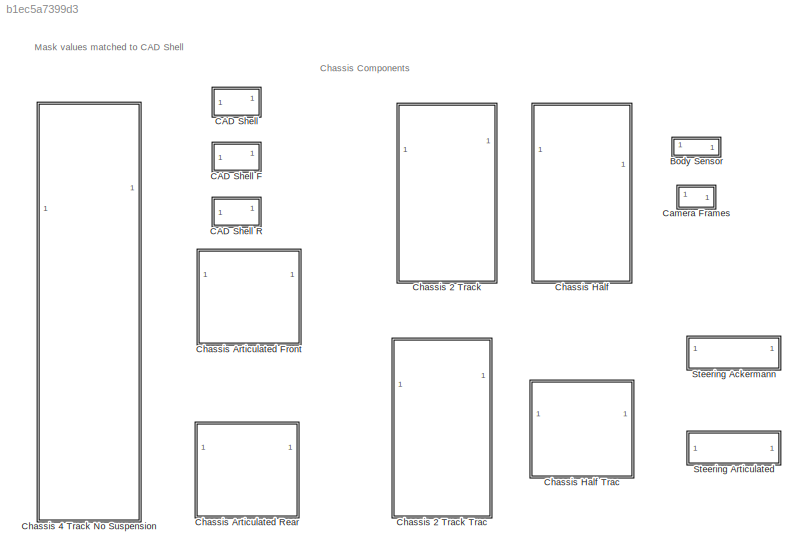
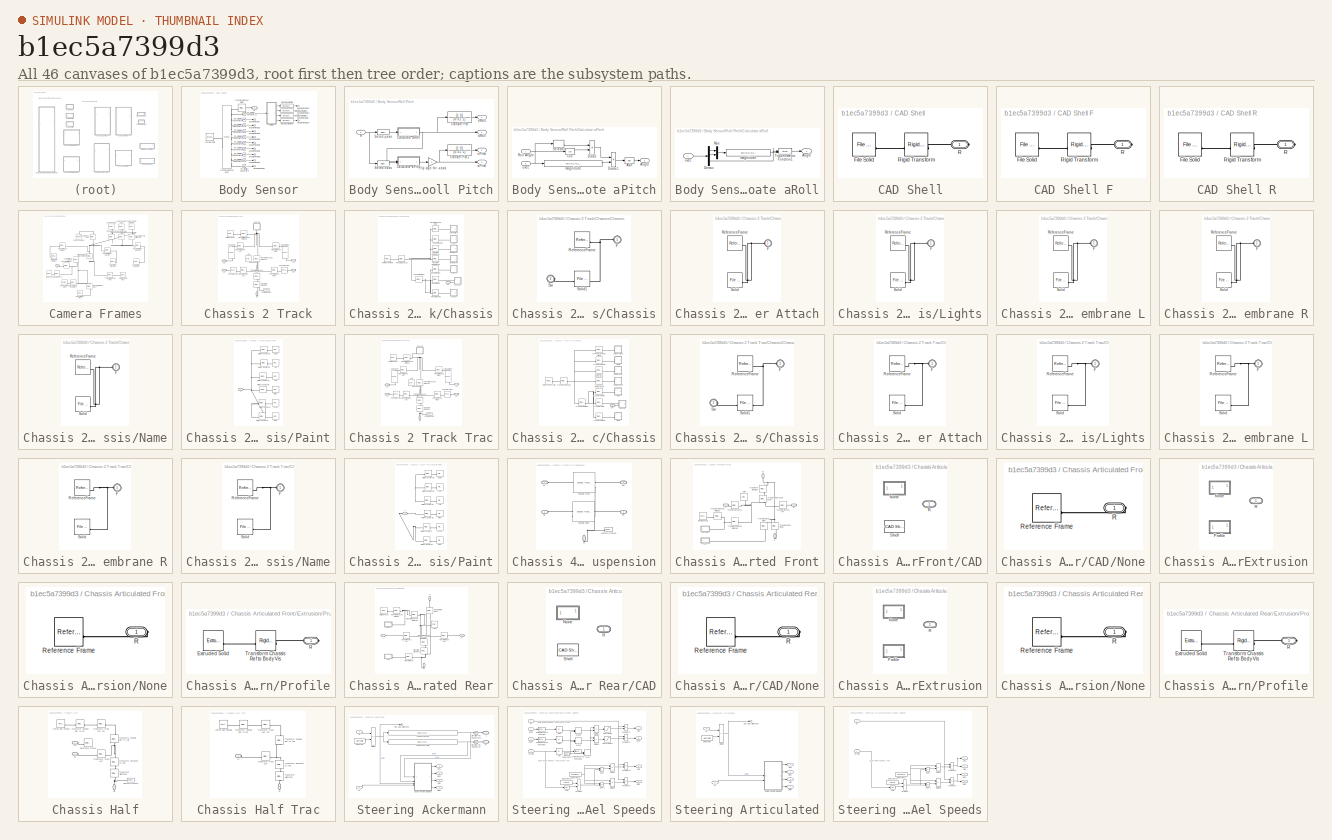
[diagram: thumbnail index - all 46 canvases of the model, root first then tree order]
MODEL slx_b1ec5a7399d3
KIND library
CONFIG SolverName = VariableStepAuto
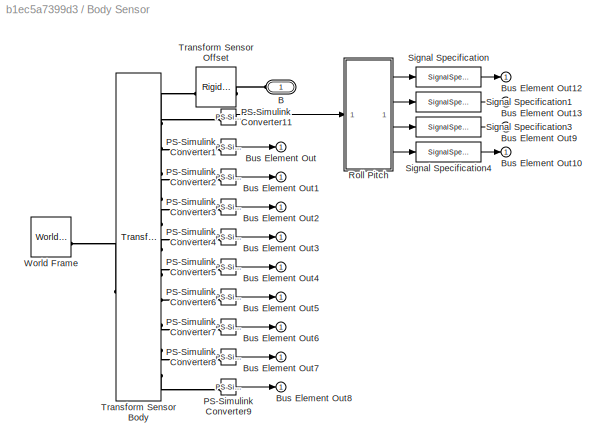
BLOCK [SubSystem] Body Sensor
BLOCK [PMIOPort] Body Sensor/B
  NameLocation = top
  Side = Left
BLOCK [Outport] Body Sensor/Bus Element Out
  VectorParamsAs1DForOutWhenUnconnected = off
BLOCK [Outport] Body Sensor/Bus Element Out1
  VectorParamsAs1DForOutWhenUnconnected = off
BLOCK [Outport] Body Sensor/Bus Element Out10
  VectorParamsAs1DForOutWhenUnconnected = off
BLOCK [Outport] Body Sensor/Bus Element Out12
  VectorParamsAs1DForOutWhenUnconnected = off
BLOCK [Outport] Body Sensor/Bus Element Out13
  VectorParamsAs1DForOutWhenUnconnected = off
BLOCK [Outport] Body Sensor/Bus Element Out2
  VectorParamsAs1DForOutWhenUnconnected = off
BLOCK [Outport] Body Sensor/Bus Element Out3
  VectorParamsAs1DForOutWhenUnconnected = off
BLOCK [Outport] Body Sensor/Bus Element Out4
  VectorParamsAs1DForOutWhenUnconnected = off
BLOCK [Outport] Body Sensor/Bus Element Out5
  VectorParamsAs1DForOutWhenUnconnected = off
BLOCK [Outport] Body Sensor/Bus Element Out6
  VectorParamsAs1DForOutWhenUnconnected = off
BLOCK [Outport] Body Sensor/Bus Element Out7
  VectorParamsAs1DForOutWhenUnconnected = off
BLOCK [Outport] Body Sensor/Bus Element Out8
  VectorParamsAs1DForOutWhenUnconnected = off
BLOCK [Outport] Body Sensor/Bus Element Out9
  VectorParamsAs1DForOutWhenUnconnected = off
BLOCK [Reference] Body Sensor/PS-Simulink Converter1  REF=nesl_utility/PS-Simulink
Converter
  SourceBlock = nesl_utility/PS-Simulink\nConverter
  SourceType = PS-Simulink\nConverter
BLOCK [Reference] Body Sensor/PS-Simulink Converter11  REF=nesl_utility/PS-Simulink
Converter
  SourceBlock = nesl_utility/PS-Simulink\nConverter
  SourceType = PS-Simulink\nConverter
BLOCK [Reference] Body Sensor/PS-Simulink Converter2  REF=nesl_utility/PS-Simulink
Converter
  SourceBlock = nesl_utility/PS-Simulink\nConverter
  SourceType = PS-Simulink\nConverter
BLOCK [Reference] Body Sensor/PS-Simulink Converter3  REF=nesl_utility/PS-Simulink
Converter
  SourceBlock = nesl_utility/PS-Simulink\nConverter
  SourceType = PS-Simulink\nConverter
BLOCK [Reference] Body Sensor/PS-Simulink Converter4  REF=nesl_utility/PS-Simulink
Converter
  SourceBlock = nesl_utility/PS-Simulink\nConverter
  SourceType = PS-Simulink\nConverter
BLOCK [Reference] Body Sensor/PS-Simulink Converter5  REF=nesl_utility/PS-Simulink
Converter
  SourceBlock = nesl_utility/PS-Simulink\nConverter
  SourceType = PS-Simulink\nConverter
BLOCK [Reference] Body Sensor/PS-Simulink Converter6  REF=nesl_utility/PS-Simulink
Converter
  SourceBlock = nesl_utility/PS-Simulink\nConverter
  SourceType = PS-Simulink\nConverter
BLOCK [Reference] Body Sensor/PS-Simulink Converter7  REF=nesl_utility/PS-Simulink
Converter
  SourceBlock = nesl_utility/PS-Simulink\nConverter
  SourceType = PS-Simulink\nConverter
BLOCK [Reference] Body Sensor/PS-Simulink Converter8  REF=nesl_utility/PS-Simulink
Converter
  SourceBlock = nesl_utility/PS-Simulink\nConverter
  SourceType = PS-Simulink\nConverter
BLOCK [Reference] Body Sensor/PS-Simulink Converter9  REF=nesl_utility/PS-Simulink
Converter
  SourceBlock = nesl_utility/PS-Simulink\nConverter
  SourceType = PS-Simulink\nConverter
BLOCK [SubSystem] Body Sensor/Roll Pitch
BLOCK [SubSystem] Body Sensor/Roll Pitch/Calculate aPitch
BLOCK [Outport] Body Sensor/Roll Pitch/Calculate aPitch/Angle
  VectorParamsAs1DForOutWhenUnconnected = off
BLOCK [Trigonometry] Body Sensor/Roll Pitch/Calculate aPitch/Asin
  Operator = asin
BLOCK [Trigonometry] Body Sensor/Roll Pitch/Calculate aPitch/Cos
  Operator = cos
BLOCK [Product] Body Sensor/Roll Pitch/Calculate aPitch/Divide
  Inputs = */
BLOCK [Product] Body Sensor/Roll Pitch/Calculate aPitch/Divide1
  Inputs = */
BLOCK [Inport] Body Sensor/Roll Pitch/Calculate aPitch/Roll Angle
BLOCK [Selector] Body Sensor/Roll Pitch/Calculate aPitch/Selector
  IndexOptions = Index vector (dialog)
  Indices = [3]
  InputPortWidth = 3
  NameLocation = top
  OutputSizes = 1
BLOCK [Fcn] Body Sensor/Roll Pitch/Calculate aPitch/magnitude
  Expr = sqrt(u(1)*u(1)+u(2)*u(2)+u(3)*u(3))
BLOCK [Inport] Body Sensor/Roll Pitch/Calculate aPitch/uvec
  Port = 2
BLOCK [SubSystem] Body Sensor/Roll Pitch/Calculate aRoll
BLOCK [Outport] Body Sensor/Roll Pitch/Calculate aRoll/Angle
  VectorParamsAs1DForOutWhenUnconnected = off
BLOCK [Demux] Body Sensor/Roll Pitch/Calculate aRoll/Demux
  Outputs = 3
BLOCK [Mux] Body Sensor/Roll Pitch/Calculate aRoll/Mux
  DisplayOption = bar
  Inputs = 2
BLOCK [Trigonometry] Body Sensor/Roll Pitch/Calculate aRoll/Trigonometric Function1
  Operator = atan2
BLOCK [Fcn] Body Sensor/Roll Pitch/Calculate aRoll/magnitude
  Expr = sqrt(u(1)*u(1)+u(2)*u(2))
BLOCK [Inport] Body Sensor/Roll Pitch/Calculate aRoll/uvec
BLOCK [Gain] Body Sensor/Roll Pitch/Flip sign for -x axis 
  Gain = -1
BLOCK [Inport] Body Sensor/Roll Pitch/R
BLOCK [Selector] Body Sensor/Roll Pitch/Select x axis
  IndexOptions = Index vector (dialog),Index vector (dialog)
  Indices = [1 2 3],1
  InputPortWidth = 2
  NumberOfDimensions = 2
  OutputSizes = 1,1
BLOCK [Selector] Body Sensor/Roll Pitch/Select y axis
  IndexOptions = Index vector (dialog),Index vector (dialog)
  Indices = [1 2 3],2
  InputPortWidth = 2
  NumberOfDimensions = 2
  OutputSizes = 1,1
BLOCK [TransferFcn] Body Sensor/Roll Pitch/Transfer Fcn
  Denominator = [0.01 1]
  NameLocation = top
  Numerator = [1 0]
BLOCK [TransferFcn] Body Sensor/Roll Pitch/Transfer Fcn1
  Denominator = [0.01 1]
  NameLocation = top
  Numerator = [1 0]
BLOCK [Outport] Body Sensor/Roll Pitch/aPitch
  Port = 2
  VectorParamsAs1DForOutWhenUnconnected = off
BLOCK [Outport] Body Sensor/Roll Pitch/aRoll
  VectorParamsAs1DForOutWhenUnconnected = off
BLOCK [Outport] Body Sensor/Roll Pitch/nPitch
  Port = 4
  VectorParamsAs1DForOutWhenUnconnected = off
BLOCK [Outport] Body Sensor/Roll Pitch/nRoll
  Port = 3
  VectorParamsAs1DForOutWhenUnconnected = off
BLOCK [SignalSpecification] Body Sensor/Signal Specification
  Unit = rad
BLOCK [SignalSpecification] Body Sensor/Signal Specification1
  Unit = rad
BLOCK [SignalSpecification] Body Sensor/Signal Specification3
  Unit = rad/s
BLOCK [SignalSpecification] Body Sensor/Signal Specification4
  Unit = rad/s
BLOCK [Reference] Body Sensor/Transform Sensor Body  REF=sm_lib/Frames and
Transforms/Transform
Sensor
  AttributesFormatString = %<MeasurementFrame>
  SourceBlock = sm_lib/Frames and\nTransforms/Transform\nSensor
  SourceType = Transform\nSensor
BLOCK [Reference] Body Sensor/Transform Sensor Offset  REF=sm_lib/Frames and
Transforms/Rigid
Transform
  NameLocation = top
  SourceBlock = sm_lib/Frames and\nTransforms/Rigid\nTransform
  SourceType = Rigid\nTransform
BLOCK [Reference] Body Sensor/World Frame  REF=sm_lib/Frames and
Transforms/World Frame
  SourceBlock = sm_lib/Frames and\nTransforms/World Frame
  SourceType = World Frame
BLOCK [SubSystem] CAD Shell
BLOCK [SubSystem] CAD Shell F
BLOCK [Reference] CAD Shell F/File Solid  REF=sm_lib/Body Elements/File Solid
  SourceBlock = sm_lib/Body Elements/File Solid
  SourceType = File Solid
BLOCK [PMIOPort] CAD Shell F/R
  Side = Right
BLOCK [Reference] CAD Shell F/Rigid Transform  REF=sm_lib/Frames and
Transforms/Rigid
Transform
  SourceBlock = sm_lib/Frames and\nTransforms/Rigid\nTransform
  SourceType = Rigid\nTransform
BLOCK [SubSystem] CAD Shell R
BLOCK [Reference] CAD Shell R/File Solid  REF=sm_lib/Body Elements/File Solid
  SourceBlock = sm_lib/Body Elements/File Solid
  SourceType = File Solid
BLOCK [PMIOPort] CAD Shell R/R
  Side = Right
BLOCK [Reference] CAD Shell R/Rigid Transform  REF=sm_lib/Frames and
Transforms/Rigid
Transform
  SourceBlock = sm_lib/Frames and\nTransforms/Rigid\nTransform
  SourceType = Rigid\nTransform
BLOCK [Reference] CAD Shell/File Solid  REF=sm_lib/Body Elements/File Solid
  SourceBlock = sm_lib/Body Elements/File Solid
  SourceType = File Solid
BLOCK [PMIOPort] CAD Shell/R
  Side = Right
BLOCK [Reference] CAD Shell/Rigid Transform  REF=sm_lib/Frames and
Transforms/Rigid
Transform
  SourceBlock = sm_lib/Frames and\nTransforms/Rigid\nTransform
  SourceType = Rigid\nTransform
BLOCK [SubSystem] Camera Frames
BLOCK [PMIOPort] Camera Frames/B
  Side = Left
BLOCK [Reference] Camera Frames/CamF CtrRear AimFront  REF=sm_lib/Frames and
Transforms/Reference
Frame
  NameLocation = top
  SourceBlock = sm_lib/Frames and\nTransforms/Reference\nFrame
  SourceType = Reference\nFrame
BLOCK [Reference] Camera Frames/CamF CtrRear AimLF  REF=sm_lib/Frames and
Transforms/Reference
Frame
  NameLocation = left
  SourceBlock = sm_lib/Frames and\nTransforms/Reference\nFrame
  SourceType = Reference\nFrame
BLOCK [Reference] Camera Frames/CamF FR Aim Front  REF=sm_lib/Frames and
Transforms/Reference
Frame
  SourceBlock = sm_lib/Frames and\nTransforms/Reference\nFrame
  SourceType = Reference\nFrame
BLOCK [Reference] Camera Frames/CamF FR AimCtr  REF=sm_lib/Frames and
Transforms/Reference
Frame
  NameLocation = top
  SourceBlock = sm_lib/Frames and\nTransforms/Reference\nFrame
  SourceType = Reference\nFrame
BLOCK [Reference] Camera Frames/CamF FR AimCtr Big  REF=sm_lib/Frames and
Transforms/Reference
Frame
  NameLocation = top
  SourceBlock = sm_lib/Frames and\nTransforms/Reference\nFrame
  SourceType = Reference\nFrame
BLOCK [Reference] Camera Frames/CamF FR AimCtr Big Front  REF=sm_lib/Frames and
Transforms/Reference
Frame
  NameLocation = top
  SourceBlock = sm_lib/Frames and\nTransforms/Reference\nFrame
  SourceType = Reference\nFrame
BLOCK [Reference] Camera Frames/CamF Front AimLR  REF=sm_lib/Frames and
Transforms/Reference
Frame
  NameLocation = left
  SourceBlock = sm_lib/Frames and\nTransforms/Reference\nFrame
  SourceType = Reference\nFrame
BLOCK [Reference] Camera Frames/CamF Left AimRight  REF=sm_lib/Frames and
Transforms/Reference
Frame
  NameLocation = right
  SourceBlock = sm_lib/Frames and\nTransforms/Reference\nFrame
  SourceType = Reference\nFrame
BLOCK [Reference] Camera Frames/CamF Left Rear AimLF  REF=sm_lib/Frames and
Transforms/Reference
Frame
  SourceBlock = sm_lib/Frames and\nTransforms/Reference\nFrame
  SourceType = Reference\nFrame
BLOCK [Reference] Camera Frames/CamF Right AimLeftTL  REF=sm_lib/Frames and
Transforms/Reference
Frame
  NameLocation = left
  SourceBlock = sm_lib/Frames and\nTransforms/Reference\nFrame
  SourceType = Reference\nFrame
BLOCK [Reference] Camera Frames/CamF Right AimLeftTR  REF=sm_lib/Frames and
Transforms/Reference
Frame
  NameLocation = left
  SourceBlock = sm_lib/Frames and\nTransforms/Reference\nFrame
  SourceType = Reference\nFrame
BLOCK [Reference] Camera Frames/CamF Top  REF=sm_lib/Frames and
Transforms/Reference
Frame
  NameLocation = left
  SourceBlock = sm_lib/Frames and\nTransforms/Reference\nFrame
  SourceType = Reference\nFrame
BLOCK [Reference] Camera Frames/Transform Ctr   REF=sm_lib/Frames and
Transforms/Rigid
Transform
  NameLocation = left
  SourceBlock = sm_lib/Frames and\nTransforms/Rigid\nTransform
  SourceType = Rigid\nTransform
BLOCK [Reference] Camera Frames/Transform Ctr Rear  REF=sm_lib/Frames and
Transforms/Rigid
Transform
  SourceBlock = sm_lib/Frames and\nTransforms/Rigid\nTransform
  SourceType = Rigid\nTransform
BLOCK [Reference] Camera Frames/Transform CtrRear AimLF  REF=sm_lib/Frames and
Transforms/Rigid
Transform
  NameLocation = left
  SourceBlock = sm_lib/Frames and\nTransforms/Rigid\nTransform
  SourceType = Rigid\nTransform
BLOCK [Reference] Camera Frames/Transform FR Aim Ctr Big  REF=sm_lib/Frames and
Transforms/Rigid
Transform
  SourceBlock = sm_lib/Frames and\nTransforms/Rigid\nTransform
  SourceType = Rigid\nTransform
BLOCK [Reference] Camera Frames/Transform FR Aim Ctr Big Front  REF=sm_lib/Frames and
Transforms/Rigid
Transform
  SourceBlock = sm_lib/Frames and\nTransforms/Rigid\nTransform
  SourceType = Rigid\nTransform
BLOCK [Reference] Camera Frames/Transform FR Aim Front  REF=sm_lib/Frames and
Transforms/Rigid
Transform
  SourceBlock = sm_lib/Frames and\nTransforms/Rigid\nTransform
  SourceType = Rigid\nTransform
BLOCK [Reference] Camera Frames/Transform Front AimLR  REF=sm_lib/Frames and
Transforms/Rigid
Transform
  NameLocation = right
  SourceBlock = sm_lib/Frames and\nTransforms/Rigid\nTransform
  SourceType = Rigid\nTransform
BLOCK [Reference] Camera Frames/Transform Left AimRight  REF=sm_lib/Frames and
Transforms/Rigid
Transform
  SourceBlock = sm_lib/Frames and\nTransforms/Rigid\nTransform
  SourceType = Rigid\nTransform
BLOCK [Reference] Camera Frames/Transform Left Rear AimLF  REF=sm_lib/Frames and
Transforms/Rigid
Transform
  SourceBlock = sm_lib/Frames and\nTransforms/Rigid\nTransform
  SourceType = Rigid\nTransform
BLOCK [Reference] Camera Frames/Transform RF Aim Ctr  REF=sm_lib/Frames and
Transforms/Rigid
Transform
  SourceBlock = sm_lib/Frames and\nTransforms/Rigid\nTransform
  SourceType = Rigid\nTransform
BLOCK [Reference] Camera Frames/Transform Right Aim LeftTL  REF=sm_lib/Frames and
Transforms/Rigid
Transform
  SourceBlock = sm_lib/Frames and\nTransforms/Rigid\nTransform
  SourceType = Rigid\nTransform
BLOCK [Reference] Camera Frames/Transform Right Aim LeftTR  REF=sm_lib/Frames and
Transforms/Rigid
Transform
  SourceBlock = sm_lib/Frames and\nTransforms/Rigid\nTransform
  SourceType = Rigid\nTransform
BLOCK [Reference] Camera Frames/Transform Top  REF=sm_lib/Frames and
Transforms/Rigid
Transform
  SourceBlock = sm_lib/Frames and\nTransforms/Rigid\nTransform
  SourceType = Rigid\nTransform
BLOCK [SubSystem] Chassis 2 Track
  NameLocation = top
  PortSchema = {"entries":[{"content":{"sides":[{"content":{"connectorIds":["LConn1","LConn2"]},"type":"ConnectorPlacement.EquallySpacedRectSide","uuid":"edd0f9cd-c75d-460e-8747-c453c06c3b51"},{"content":{"connectorIds":["RConn1","RConn2"],"side":"RIGHT"},"type":"ConnectorPlacement.EquallySpacedRectSide","uuid":"aac0b74e-f978-42e3-a6a1-4bc72aaab1ab"},{"content":{"side":"TOP"},"type":"ConnectorPlacement.EquallySp...<+397ch>  <repeated x3 — deduplicated; at blocks: Chassis 2 Track, Chassis 2 Track Trac, Chassis 4 Track No Suspension>
BLOCK [SubSystem] Chassis 2 Track Trac
  NameLocation = top
BLOCK [Reference] Chassis 2 Track Trac/Axle  REF=sm_lib/Body Elements/Cylindrical Solid
  NameLocation = left
  SourceBlock = sm_lib/Body Elements/Cylindrical Solid
  SourceType = Cylindrical Solid
BLOCK [Reference] Chassis 2 Track Trac/Camera Frames  REF=$bdroot/Camera
Frames
  SourceBlock = $bdroot/Camera\nFrames
BLOCK [SubSystem] Chassis 2 Track Trac/Chassis
  NameLocation = left
BLOCK [SubSystem] Chassis 2 Track Trac/Chassis/Chassis
BLOCK [PMIOPort] Chassis 2 Track Trac/Chassis/Chassis/F
  Side = Left
BLOCK [Reference] Chassis 2 Track Trac/Chassis/Chassis/ReferenceFrame  REF=sm_lib/Frames and
Transforms/Reference
Frame
  SourceBlock = sm_lib/Frames and\nTransforms/Reference\nFrame
  SourceType = Reference\nFrame
BLOCK [Reference] Chassis 2 Track Trac/Chassis/Chassis/Solid1  REF=sm_lib/Body Elements/File Solid
  SourceBlock = sm_lib/Body Elements/File Solid
  SourceType = File Solid
BLOCK [PMIOPort] Chassis 2 Track Trac/Chassis/Chassis/Sw
  Port = 2
  Side = Left
BLOCK [SubSystem] Chassis 2 Track Trac/Chassis/Cylinder Attach
BLOCK [PMIOPort] Chassis 2 Track Trac/Chassis/Cylinder Attach/F
  Side = Left
BLOCK [Reference] Chassis 2 Track Trac/Chassis/Cylinder Attach/ReferenceFrame  REF=sm_lib/Frames and
Transforms/Reference
Frame
  SourceBlock = sm_lib/Frames and\nTransforms/Reference\nFrame
  SourceType = Reference\nFrame
BLOCK [Reference] Chassis 2 Track Trac/Chassis/Cylinder Attach/Solid  REF=sm_lib/Body Elements/File Solid
  SourceBlock = sm_lib/Body Elements/File Solid
  SourceType = File Solid
BLOCK [SubSystem] Chassis 2 Track Trac/Chassis/Lights
BLOCK [PMIOPort] Chassis 2 Track Trac/Chassis/Lights/F
  Side = Left
BLOCK [Reference] Chassis 2 Track Trac/Chassis/Lights/ReferenceFrame  REF=sm_lib/Frames and
Transforms/Reference
Frame
  SourceBlock = sm_lib/Frames and\nTransforms/Reference\nFrame
  SourceType = Reference\nFrame
BLOCK [Reference] Chassis 2 Track Trac/Chassis/Lights/Solid  REF=sm_lib/Body Elements/File Solid
  SourceBlock = sm_lib/Body Elements/File Solid
  SourceType = File Solid
BLOCK [SubSystem] Chassis 2 Track Trac/Chassis/Membrane L
BLOCK [PMIOPort] Chassis 2 Track Trac/Chassis/Membrane L/F
  Side = Left
BLOCK [Reference] Chassis 2 Track Trac/Chassis/Membrane L/ReferenceFrame  REF=sm_lib/Frames and
Transforms/Reference
Frame
  SourceBlock = sm_lib/Frames and\nTransforms/Reference\nFrame
  SourceType = Reference\nFrame
BLOCK [Reference] Chassis 2 Track Trac/Chassis/Membrane L/Solid  REF=sm_lib/Body Elements/File Solid
  SourceBlock = sm_lib/Body Elements/File Solid
  SourceType = File Solid
BLOCK [SubSystem] Chassis 2 Track Trac/Chassis/Membrane R
BLOCK [PMIOPort] Chassis 2 Track Trac/Chassis/Membrane R/F
  Side = Left
BLOCK [Reference] Chassis 2 Track Trac/Chassis/Membrane R/ReferenceFrame  REF=sm_lib/Frames and
Transforms/Reference
Frame
  SourceBlock = sm_lib/Frames and\nTransforms/Reference\nFrame
  SourceType = Reference\nFrame
BLOCK [Reference] Chassis 2 Track Trac/Chassis/Membrane R/Solid  REF=sm_lib/Body Elements/File Solid
  SourceBlock = sm_lib/Body Elements/File Solid
  SourceType = File Solid
BLOCK [SubSystem] Chassis 2 Track Trac/Chassis/Name
BLOCK [PMIOPort] Chassis 2 Track Trac/Chassis/Name/F
  Side = Left
BLOCK [Reference] Chassis 2 Track Trac/Chassis/Name/ReferenceFrame  REF=sm_lib/Frames and
Transforms/Reference
Frame
  SourceBlock = sm_lib/Frames and\nTransforms/Reference\nFrame
  SourceType = Reference\nFrame
BLOCK [Reference] Chassis 2 Track Trac/Chassis/Name/Solid  REF=sm_lib/Body Elements/File Solid
  SourceBlock = sm_lib/Body Elements/File Solid
  SourceType = File Solid
BLOCK [SubSystem] Chassis 2 Track Trac/Chassis/Paint
BLOCK [Reference] Chassis 2 Track Trac/Chassis/Paint/Down  REF=sm_lib/Body Elements/File Solid
  NameLocation = top
  SourceBlock = sm_lib/Body Elements/File Solid
  SourceType = File Solid
BLOCK [PMIOPort] Chassis 2 Track Trac/Chassis/Paint/F
  Side = Left
BLOCK [Reference] Chassis 2 Track Trac/Chassis/Paint/Front  REF=sm_lib/Body Elements/File Solid
  NameLocation = top
  SourceBlock = sm_lib/Body Elements/File Solid
  SourceType = File Solid
BLOCK [Reference] Chassis 2 Track Trac/Chassis/Paint/Left  REF=sm_lib/Body Elements/File Solid
  NameLocation = top
  SourceBlock = sm_lib/Body Elements/File Solid
  SourceType = File Solid
BLOCK [Reference] Chassis 2 Track Trac/Chassis/Paint/Rear  REF=sm_lib/Body Elements/File Solid
  NameLocation = top
  SourceBlock = sm_lib/Body Elements/File Solid
  SourceType = File Solid
BLOCK [Reference] Chassis 2 Track Trac/Chassis/Paint/Right  REF=sm_lib/Body Elements/File Solid
  NameLocation = top
  SourceBlock = sm_lib/Body Elements/File Solid
  SourceType = File Solid
BLOCK [Reference] Chassis 2 Track Trac/Chassis/Paint/Rigid Transform  REF=sm_lib/Frames and
Transforms/Rigid
Transform
  SourceBlock = sm_lib/Frames and\nTransforms/Rigid\nTransform
  SourceType = Rigid\nTransform
BLOCK [Reference] Chassis 2 Track Trac/Chassis/Paint/Rigid Transform1  REF=sm_lib/Frames and
Transforms/Rigid
Transform
  SourceBlock = sm_lib/Frames and\nTransforms/Rigid\nTransform
  SourceType = Rigid\nTransform
BLOCK [Reference] Chassis 2 Track Trac/Chassis/Paint/Rigid Transform2  REF=sm_lib/Frames and
Transforms/Rigid
Transform
  SourceBlock = sm_lib/Frames and\nTransforms/Rigid\nTransform
  SourceType = Rigid\nTransform
BLOCK [Reference] Chassis 2 Track Trac/Chassis/Paint/Rigid Transform3  REF=sm_lib/Frames and
Transforms/Rigid
Transform
  SourceBlock = sm_lib/Frames and\nTransforms/Rigid\nTransform
  SourceType = Rigid\nTransform
BLOCK [Reference] Chassis 2 Track Trac/Chassis/Paint/Rigid Transform4  REF=sm_lib/Frames and
Transforms/Rigid
Transform
  SourceBlock = sm_lib/Frames and\nTransforms/Rigid\nTransform
  SourceType = Rigid\nTransform
BLOCK [Reference] Chassis 2 Track Trac/Chassis/Paint/Rigid Transform5  REF=sm_lib/Frames and
Transforms/Rigid
Transform
  SourceBlock = sm_lib/Frames and\nTransforms/Rigid\nTransform
  SourceType = Rigid\nTransform
BLOCK [Reference] Chassis 2 Track Trac/Chassis/Paint/Up  REF=sm_lib/Body Elements/File Solid
  NameLocation = top
  SourceBlock = sm_lib/Body Elements/File Solid
  SourceType = File Solid
BLOCK [Reference] Chassis 2 Track Trac/Chassis/Reference Frame  REF=sm_lib/Frames and
Transforms/Reference
Frame
  SourceBlock = sm_lib/Frames and\nTransforms/Reference\nFrame
  SourceType = Reference\nFrame
BLOCK [PMIOPort] Chassis 2 Track Trac/Chassis/Sw
  Side = Left
BLOCK [Reference] Chassis 2 Track Trac/Chassis/Transform Chassis  REF=sm_lib/Frames and
Transforms/Rigid
Transform
  SourceBlock = sm_lib/Frames and\nTransforms/Rigid\nTransform
  SourceType = Rigid\nTransform
BLOCK [Reference] Chassis 2 Track Trac/Chassis/Transform Cylnder Attach  REF=sm_lib/Frames and
Transforms/Rigid
Transform
  SourceBlock = sm_lib/Frames and\nTransforms/Rigid\nTransform
  SourceType = Rigid\nTransform
BLOCK [Reference] Chassis 2 Track Trac/Chassis/Transform Hull  REF=sm_lib/Frames and
Transforms/Rigid
Transform
  SourceBlock = sm_lib/Frames and\nTransforms/Rigid\nTransform
  SourceType = Rigid\nTransform
BLOCK [Reference] Chassis 2 Track Trac/Chassis/Transform Hull Plus  REF=sm_lib/Frames and
Transforms/Rigid
Transform
  SourceBlock = sm_lib/Frames and\nTransforms/Rigid\nTransform
  SourceType = Rigid\nTransform
BLOCK [Reference] Chassis 2 Track Trac/Chassis/Transform Lights  REF=sm_lib/Frames and
Transforms/Rigid
Transform
  SourceBlock = sm_lib/Frames and\nTransforms/Rigid\nTransform
  SourceType = Rigid\nTransform
BLOCK [Reference] Chassis 2 Track Trac/Chassis/Transform Membrane L  REF=sm_lib/Frames and
Transforms/Rigid
Transform
  SourceBlock = sm_lib/Frames and\nTransforms/Rigid\nTransform
  SourceType = Rigid\nTransform
BLOCK [Reference] Chassis 2 Track Trac/Chassis/Transform Membrane R  REF=sm_lib/Frames and
Transforms/Rigid
Transform
  SourceBlock = sm_lib/Frames and\nTransforms/Rigid\nTransform
  SourceType = Rigid\nTransform
BLOCK [Reference] Chassis 2 Track Trac/Chassis/Transform Name  REF=sm_lib/Frames and
Transforms/Rigid
Transform
  SourceBlock = sm_lib/Frames and\nTransforms/Rigid\nTransform
  SourceType = Rigid\nTransform
BLOCK [Reference] Chassis 2 Track Trac/Chassis/Transform Paint  REF=sm_lib/Frames and
Transforms/Rigid
Transform
  SourceBlock = sm_lib/Frames and\nTransforms/Rigid\nTransform
  SourceType = Rigid\nTransform
BLOCK [Reference] Chassis 2 Track Trac/Cylinder Left  REF=sm_trackV_lib_chain_underc_elem/Suspension
Cylinder
  Commented = on
  NameLocation = left
  SourceBlock = sm_trackV_lib_chain_underc_elem/Suspension\nCylinder
BLOCK [Reference] Chassis 2 Track Trac/Cylinder Right  REF=sm_trackV_lib_chain_underc_elem/Suspension
Cylinder
  Commented = on
  NameLocation = right
  SourceBlock = sm_trackV_lib_chain_underc_elem/Suspension\nCylinder
BLOCK [Reference] Chassis 2 Track Trac/Inertia Chassis  REF=sm_lib/Body Elements/Inertia
  SourceBlock = sm_lib/Body Elements/Inertia
  SourceType = Inertia
BLOCK [Reference] Chassis 2 Track Trac/Revolute Axle L  REF=sm_lib/Joints/Revolute Joint
  Commented = through
  SourceBlock = sm_lib/Joints/Revolute Joint
  SourceType = Revolute Joint
BLOCK [Reference] Chassis 2 Track Trac/Revolute Axle R  REF=sm_lib/Joints/Revolute Joint
  Commented = through
  SourceBlock = sm_lib/Joints/Revolute Joint
  SourceType = Revolute Joint
BLOCK [Reference] Chassis 2 Track Trac/Transform Alignment  REF=sm_lib/Frames and
Transforms/Rigid
Transform
  NameLocation = left
  SourceBlock = sm_lib/Frames and\nTransforms/Rigid\nTransform
  SourceType = Rigid\nTransform
BLOCK [Reference] Chassis 2 Track Trac/Transform Chassis Ref to Axle  REF=sm_lib/Frames and
Transforms/Rigid
Transform
  NameLocation = right
  SourceBlock = sm_lib/Frames and\nTransforms/Rigid\nTransform
  SourceType = Rigid\nTransform
BLOCK [Reference] Chassis 2 Track Trac/Transform Chassis Ref to CG  REF=sm_lib/Frames and
Transforms/Rigid
Transform
  SourceBlock = sm_lib/Frames and\nTransforms/Rigid\nTransform
  SourceType = Rigid\nTransform
BLOCK [Reference] Chassis 2 Track Trac/Transform Sprocket to Axle  REF=sm_lib/Frames and
Transforms/Rigid
Transform
  NameLocation = right
  SourceBlock = sm_lib/Frames and\nTransforms/Rigid\nTransform
  SourceType = Rigid\nTransform
BLOCK [Reference] Chassis 2 Track Trac/Transform Susp Left  REF=sm_lib/Frames and
Transforms/Rigid
Transform
  SourceBlock = sm_lib/Frames and\nTransforms/Rigid\nTransform
  SourceType = Rigid\nTransform
BLOCK [Reference] Chassis 2 Track Trac/Transform Susp Right  REF=sm_lib/Frames and
Transforms/Rigid
Transform
  SourceBlock = sm_lib/Frames and\nTransforms/Rigid\nTransform
  SourceType = Rigid\nTransform
BLOCK [Reference] Chassis 2 Track Trac/Transform Track Left  REF=sm_lib/Frames and
Transforms/Rigid
Transform
  SourceBlock = sm_lib/Frames and\nTransforms/Rigid\nTransform
  SourceType = Rigid\nTransform
BLOCK [Reference] Chassis 2 Track Trac/Transform Track Right  REF=sm_lib/Frames and
Transforms/Rigid
Transform
  SourceBlock = sm_lib/Frames and\nTransforms/Rigid\nTransform
  SourceType = Rigid\nTransform
BLOCK [PMIOPort] Chassis 2 Track Trac/W
  NameLocation = right
  Port = 5
  Side = Right
BLOCK [PMIOPort] Chassis 2 Track Trac/aL
  Port = 2
  Side = Left
BLOCK [PMIOPort] Chassis 2 Track Trac/aR
  Port = 4
  Side = Right
BLOCK [PMIOPort] Chassis 2 Track Trac/sL
  Side = Left
BLOCK [PMIOPort] Chassis 2 Track Trac/sR
  Port = 3
  Side = Right
BLOCK [Reference] Chassis 2 Track/Axle  REF=sm_lib/Body Elements/Cylindrical Solid
  NameLocation = left
  SourceBlock = sm_lib/Body Elements/Cylindrical Solid
  SourceType = Cylindrical Solid
BLOCK [Reference] Chassis 2 Track/Camera Frames  REF=$bdroot/Camera
Frames
  SourceBlock = $bdroot/Camera\nFrames
BLOCK [SubSystem] Chassis 2 Track/Chassis
  NameLocation = left
BLOCK [SubSystem] Chassis 2 Track/Chassis/Chassis
BLOCK [PMIOPort] Chassis 2 Track/Chassis/Chassis/F
  Side = Left
BLOCK [Reference] Chassis 2 Track/Chassis/Chassis/ReferenceFrame  REF=sm_lib/Frames and
Transforms/Reference
Frame
  SourceBlock = sm_lib/Frames and\nTransforms/Reference\nFrame
  SourceType = Reference\nFrame
BLOCK [Reference] Chassis 2 Track/Chassis/Chassis/Solid1  REF=sm_lib/Body Elements/File Solid
  SourceBlock = sm_lib/Body Elements/File Solid
  SourceType = File Solid
BLOCK [PMIOPort] Chassis 2 Track/Chassis/Chassis/Sw
  Port = 2
  Side = Left
BLOCK [SubSystem] Chassis 2 Track/Chassis/Cylinder Attach
BLOCK [PMIOPort] Chassis 2 Track/Chassis/Cylinder Attach/F
  Side = Left
BLOCK [Reference] Chassis 2 Track/Chassis/Cylinder Attach/ReferenceFrame  REF=sm_lib/Frames and
Transforms/Reference
Frame
  SourceBlock = sm_lib/Frames and\nTransforms/Reference\nFrame
  SourceType = Reference\nFrame
BLOCK [Reference] Chassis 2 Track/Chassis/Cylinder Attach/Solid  REF=sm_lib/Body Elements/File Solid
  SourceBlock = sm_lib/Body Elements/File Solid
  SourceType = File Solid
BLOCK [SubSystem] Chassis 2 Track/Chassis/Lights
BLOCK [PMIOPort] Chassis 2 Track/Chassis/Lights/F
  Side = Left
BLOCK [Reference] Chassis 2 Track/Chassis/Lights/ReferenceFrame  REF=sm_lib/Frames and
Transforms/Reference
Frame
  SourceBlock = sm_lib/Frames and\nTransforms/Reference\nFrame
  SourceType = Reference\nFrame
BLOCK [Reference] Chassis 2 Track/Chassis/Lights/Solid  REF=sm_lib/Body Elements/File Solid
  SourceBlock = sm_lib/Body Elements/File Solid
  SourceType = File Solid
BLOCK [SubSystem] Chassis 2 Track/Chassis/Membrane L
BLOCK [PMIOPort] Chassis 2 Track/Chassis/Membrane L/F
  Side = Left
BLOCK [Reference] Chassis 2 Track/Chassis/Membrane L/ReferenceFrame  REF=sm_lib/Frames and
Transforms/Reference
Frame
  SourceBlock = sm_lib/Frames and\nTransforms/Reference\nFrame
  SourceType = Reference\nFrame
BLOCK [Reference] Chassis 2 Track/Chassis/Membrane L/Solid  REF=sm_lib/Body Elements/File Solid
  SourceBlock = sm_lib/Body Elements/File Solid
  SourceType = File Solid
BLOCK [SubSystem] Chassis 2 Track/Chassis/Membrane R
BLOCK [PMIOPort] Chassis 2 Track/Chassis/Membrane R/F
  Side = Left
BLOCK [Reference] Chassis 2 Track/Chassis/Membrane R/ReferenceFrame  REF=sm_lib/Frames and
Transforms/Reference
Frame
  SourceBlock = sm_lib/Frames and\nTransforms/Reference\nFrame
  SourceType = Reference\nFrame
BLOCK [Reference] Chassis 2 Track/Chassis/Membrane R/Solid  REF=sm_lib/Body Elements/File Solid
  SourceBlock = sm_lib/Body Elements/File Solid
  SourceType = File Solid
BLOCK [SubSystem] Chassis 2 Track/Chassis/Name
BLOCK [PMIOPort] Chassis 2 Track/Chassis/Name/F
  Side = Left
BLOCK [Reference] Chassis 2 Track/Chassis/Name/ReferenceFrame  REF=sm_lib/Frames and
Transforms/Reference
Frame
  SourceBlock = sm_lib/Frames and\nTransforms/Reference\nFrame
  SourceType = Reference\nFrame
BLOCK [Reference] Chassis 2 Track/Chassis/Name/Solid  REF=sm_lib/Body Elements/File Solid
  SourceBlock = sm_lib/Body Elements/File Solid
  SourceType = File Solid
BLOCK [SubSystem] Chassis 2 Track/Chassis/Paint
BLOCK [Reference] Chassis 2 Track/Chassis/Paint/Down  REF=sm_lib/Body Elements/File Solid
  NameLocation = top
  SourceBlock = sm_lib/Body Elements/File Solid
  SourceType = File Solid
BLOCK [PMIOPort] Chassis 2 Track/Chassis/Paint/F
  Side = Left
BLOCK [Reference] Chassis 2 Track/Chassis/Paint/Front  REF=sm_lib/Body Elements/File Solid
  NameLocation = top
  SourceBlock = sm_lib/Body Elements/File Solid
  SourceType = File Solid
BLOCK [Reference] Chassis 2 Track/Chassis/Paint/Left  REF=sm_lib/Body Elements/File Solid
  NameLocation = top
  SourceBlock = sm_lib/Body Elements/File Solid
  SourceType = File Solid
BLOCK [Reference] Chassis 2 Track/Chassis/Paint/Rear  REF=sm_lib/Body Elements/File Solid
  NameLocation = top
  SourceBlock = sm_lib/Body Elements/File Solid
  SourceType = File Solid
BLOCK [Reference] Chassis 2 Track/Chassis/Paint/Right  REF=sm_lib/Body Elements/File Solid
  NameLocation = top
  SourceBlock = sm_lib/Body Elements/File Solid
  SourceType = File Solid
BLOCK [Reference] Chassis 2 Track/Chassis/Paint/Rigid Transform  REF=sm_lib/Frames and
Transforms/Rigid
Transform
  SourceBlock = sm_lib/Frames and\nTransforms/Rigid\nTransform
  SourceType = Rigid\nTransform
BLOCK [Reference] Chassis 2 Track/Chassis/Paint/Rigid Transform1  REF=sm_lib/Frames and
Transforms/Rigid
Transform
  SourceBlock = sm_lib/Frames and\nTransforms/Rigid\nTransform
  SourceType = Rigid\nTransform
BLOCK [Reference] Chassis 2 Track/Chassis/Paint/Rigid Transform2  REF=sm_lib/Frames and
Transforms/Rigid
Transform
  SourceBlock = sm_lib/Frames and\nTransforms/Rigid\nTransform
  SourceType = Rigid\nTransform
BLOCK [Reference] Chassis 2 Track/Chassis/Paint/Rigid Transform3  REF=sm_lib/Frames and
Transforms/Rigid
Transform
  SourceBlock = sm_lib/Frames and\nTransforms/Rigid\nTransform
  SourceType = Rigid\nTransform
BLOCK [Reference] Chassis 2 Track/Chassis/Paint/Rigid Transform4  REF=sm_lib/Frames and
Transforms/Rigid
Transform
  SourceBlock = sm_lib/Frames and\nTransforms/Rigid\nTransform
  SourceType = Rigid\nTransform
BLOCK [Reference] Chassis 2 Track/Chassis/Paint/Rigid Transform5  REF=sm_lib/Frames and
Transforms/Rigid
Transform
  SourceBlock = sm_lib/Frames and\nTransforms/Rigid\nTransform
  SourceType = Rigid\nTransform
BLOCK [Reference] Chassis 2 Track/Chassis/Paint/Up  REF=sm_lib/Body Elements/File Solid
  NameLocation = top
  SourceBlock = sm_lib/Body Elements/File Solid
  SourceType = File Solid
BLOCK [Reference] Chassis 2 Track/Chassis/Reference Frame  REF=sm_lib/Frames and
Transforms/Reference
Frame
  SourceBlock = sm_lib/Frames and\nTransforms/Reference\nFrame
  SourceType = Reference\nFrame
BLOCK [PMIOPort] Chassis 2 Track/Chassis/Sw
  Side = Left
BLOCK [Reference] Chassis 2 Track/Chassis/Transform Chassis  REF=sm_lib/Frames and
Transforms/Rigid
Transform
  SourceBlock = sm_lib/Frames and\nTransforms/Rigid\nTransform
  SourceType = Rigid\nTransform
BLOCK [Reference] Chassis 2 Track/Chassis/Transform Cylnder Attach  REF=sm_lib/Frames and
Transforms/Rigid
Transform
  SourceBlock = sm_lib/Frames and\nTransforms/Rigid\nTransform
  SourceType = Rigid\nTransform
BLOCK [Reference] Chassis 2 Track/Chassis/Transform Hull  REF=sm_lib/Frames and
Transforms/Rigid
Transform
  SourceBlock = sm_lib/Frames and\nTransforms/Rigid\nTransform
  SourceType = Rigid\nTransform
BLOCK [Reference] Chassis 2 Track/Chassis/Transform Hull Plus  REF=sm_lib/Frames and
Transforms/Rigid
Transform
  SourceBlock = sm_lib/Frames and\nTransforms/Rigid\nTransform
  SourceType = Rigid\nTransform
BLOCK [Reference] Chassis 2 Track/Chassis/Transform Lights  REF=sm_lib/Frames and
Transforms/Rigid
Transform
  SourceBlock = sm_lib/Frames and\nTransforms/Rigid\nTransform
  SourceType = Rigid\nTransform
BLOCK [Reference] Chassis 2 Track/Chassis/Transform Membrane L  REF=sm_lib/Frames and
Transforms/Rigid
Transform
  SourceBlock = sm_lib/Frames and\nTransforms/Rigid\nTransform
  SourceType = Rigid\nTransform
BLOCK [Reference] Chassis 2 Track/Chassis/Transform Membrane R  REF=sm_lib/Frames and
Transforms/Rigid
Transform
  SourceBlock = sm_lib/Frames and\nTransforms/Rigid\nTransform
  SourceType = Rigid\nTransform
BLOCK [Reference] Chassis 2 Track/Chassis/Transform Name  REF=sm_lib/Frames and
Transforms/Rigid
Transform
  SourceBlock = sm_lib/Frames and\nTransforms/Rigid\nTransform
  SourceType = Rigid\nTransform
BLOCK [Reference] Chassis 2 Track/Chassis/Transform Paint  REF=sm_lib/Frames and
Transforms/Rigid
Transform
  SourceBlock = sm_lib/Frames and\nTransforms/Rigid\nTransform
  SourceType = Rigid\nTransform
BLOCK [Reference] Chassis 2 Track/Cylinder Left  REF=sm_trackV_lib_chain_underc_elem/Suspension
Cylinder
  NameLocation = left
  SourceBlock = sm_trackV_lib_chain_underc_elem/Suspension\nCylinder
BLOCK [Reference] Chassis 2 Track/Cylinder Right  REF=sm_trackV_lib_chain_underc_elem/Suspension
Cylinder
  NameLocation = right
  SourceBlock = sm_trackV_lib_chain_underc_elem/Suspension\nCylinder
BLOCK [Reference] Chassis 2 Track/Inertia Chassis  REF=sm_lib/Body Elements/Inertia
  SourceBlock = sm_lib/Body Elements/Inertia
  SourceType = Inertia
BLOCK [Reference] Chassis 2 Track/Revolute Axle L  REF=sm_lib/Joints/Revolute Joint
  SourceBlock = sm_lib/Joints/Revolute Joint
  SourceType = Revolute Joint
BLOCK [Reference] Chassis 2 Track/Revolute Axle R  REF=sm_lib/Joints/Revolute Joint
  SourceBlock = sm_lib/Joints/Revolute Joint
  SourceType = Revolute Joint
BLOCK [Reference] Chassis 2 Track/Transform Alignment  REF=sm_lib/Frames and
Transforms/Rigid
Transform
  NameLocation = left
  SourceBlock = sm_lib/Frames and\nTransforms/Rigid\nTransform
  SourceType = Rigid\nTransform
BLOCK [Reference] Chassis 2 Track/Transform Chassis Ref to Axle  REF=sm_lib/Frames and
Transforms/Rigid
Transform
  NameLocation = right
  SourceBlock = sm_lib/Frames and\nTransforms/Rigid\nTransform
  SourceType = Rigid\nTransform
BLOCK [Reference] Chassis 2 Track/Transform Chassis Ref to CG  REF=sm_lib/Frames and
Transforms/Rigid
Transform
  SourceBlock = sm_lib/Frames and\nTransforms/Rigid\nTransform
  SourceType = Rigid\nTransform
BLOCK [Reference] Chassis 2 Track/Transform Sprocket to Axle  REF=sm_lib/Frames and
Transforms/Rigid
Transform
  NameLocation = right
  SourceBlock = sm_lib/Frames and\nTransforms/Rigid\nTransform
  SourceType = Rigid\nTransform
BLOCK [Reference] Chassis 2 Track/Transform Susp Left  REF=sm_lib/Frames and
Transforms/Rigid
Transform
  SourceBlock = sm_lib/Frames and\nTransforms/Rigid\nTransform
  SourceType = Rigid\nTransform
BLOCK [Reference] Chassis 2 Track/Transform Susp Right  REF=sm_lib/Frames and
Transforms/Rigid
Transform
  SourceBlock = sm_lib/Frames and\nTransforms/Rigid\nTransform
  SourceType = Rigid\nTransform
BLOCK [Reference] Chassis 2 Track/Transform Track Left  REF=sm_lib/Frames and
Transforms/Rigid
Transform
  SourceBlock = sm_lib/Frames and\nTransforms/Rigid\nTransform
  SourceType = Rigid\nTransform
BLOCK [Reference] Chassis 2 Track/Transform Track Right  REF=sm_lib/Frames and
Transforms/Rigid
Transform
  SourceBlock = sm_lib/Frames and\nTransforms/Rigid\nTransform
  SourceType = Rigid\nTransform
BLOCK [PMIOPort] Chassis 2 Track/W
  NameLocation = right
  Port = 5
  Side = Right
BLOCK [PMIOPort] Chassis 2 Track/aL
  Port = 2
  Side = Left
BLOCK [PMIOPort] Chassis 2 Track/aR
  Port = 4
  Side = Right
BLOCK [PMIOPort] Chassis 2 Track/sL
  Side = Left
BLOCK [PMIOPort] Chassis 2 Track/sR
  Port = 3
  Side = Right
BLOCK [SubSystem] Chassis 4 Track No Suspension
  NameLocation = top
BLOCK [Reference] Chassis 4 Track No Suspension/Camera Frames  REF=$bdroot/Camera
Frames
  SourceBlock = $bdroot/Camera\nFrames
BLOCK [Reference] Chassis 4 Track No Suspension/Chassis Front  REF=$bdroot/Chassis Articulated Front
  SourceBlock = $bdroot/Chassis Articulated Front
BLOCK [Reference] Chassis 4 Track No Suspension/Chassis Rear  REF=$bdroot/Chassis Articulated Rear
  SourceBlock = $bdroot/Chassis Articulated Rear
BLOCK [PMIOPort] Chassis 4 Track No Suspension/FL
  Side = Left
BLOCK [PMIOPort] Chassis 4 Track No Suspension/FR
  Port = 2
  Side = Right
BLOCK [PMIOPort] Chassis 4 Track No Suspension/RL
  Port = 5
  Side = Left
BLOCK [PMIOPort] Chassis 4 Track No Suspension/RR
  Port = 3
  Side = Right
BLOCK [PMIOPort] Chassis 4 Track No Suspension/W
  NameLocation = right
  Port = 4
  Side = Right
BLOCK [SubSystem] Chassis Articulated Front
  PortSchema = {"entries":[{"content":{"sides":[{"content":{"connectorIds":["LConn1"]},"type":"ConnectorPlacement.EquallySpacedRectSide","uuid":"783442ce-ff8c-4ffd-985e-ad561337c504"},{"content":{"connectorIds":["RConn1"],"side":"RIGHT"},"type":"ConnectorPlacement.EquallySpacedRectSide","uuid":"e5fa2bd9-d20b-4616-b7eb-3909246815d1"},{"content":{"connectorIds":["LConn2"],"side":"TOP"},"type":"ConnectorPlacement.E...<+405ch>
BLOCK [Reference] Chassis Articulated Front/AxleF  REF=sm_lib/Body Elements/Cylindrical Solid
  NameLocation = left
  SourceBlock = sm_lib/Body Elements/Cylindrical Solid
  SourceType = Cylindrical Solid
BLOCK [SubSystem] Chassis Articulated Front/CAD
  AttributesFormatString = %<LabelModeActiveChoice>
  LabelModeActiveChoice = Shell
  Variant = on
  VariantControl = Shell
  VariantControlMode = label
BLOCK [SubSystem] Chassis Articulated Front/CAD/None
  VariantControl = None
BLOCK [PMIOPort] Chassis Articulated Front/CAD/None/R
  Side = Right
BLOCK [Reference] Chassis Articulated Front/CAD/None/Reference Frame  REF=sm_lib/Frames and
Transforms/Reference
Frame
  SourceBlock = sm_lib/Frames and\nTransforms/Reference\nFrame
  SourceType = Reference\nFrame
BLOCK [PMIOPort] Chassis Articulated Front/CAD/R
  Side = Right
BLOCK [Reference] Chassis Articulated Front/CAD/Shell  REF=$bdroot/CAD Shell F
  SourceBlock = $bdroot/CAD Shell F
  SourceType = SubSystem
BLOCK [SubSystem] Chassis Articulated Front/Extrusion
  AttributesFormatString = %<LabelModeActiveChoice>
  LabelModeActiveChoice = None
  Variant = on
  VariantControl = Profile
  VariantControlMode = label
BLOCK [SubSystem] Chassis Articulated Front/Extrusion/None
  VariantControl = None
BLOCK [PMIOPort] Chassis Articulated Front/Extrusion/None/R
  Side = Right
BLOCK [Reference] Chassis Articulated Front/Extrusion/None/Reference Frame  REF=sm_lib/Frames and
Transforms/Reference
Frame
  SourceBlock = sm_lib/Frames and\nTransforms/Reference\nFrame
  SourceType = Reference\nFrame
BLOCK [SubSystem] Chassis Articulated Front/Extrusion/Profile
  VariantControl = Profile
BLOCK [Reference] Chassis Articulated Front/Extrusion/Profile/Extruded Solid  REF=sm_lib/Body Elements/Extruded Solid
  SourceBlock = sm_lib/Body Elements/Extruded Solid
  SourceType = Extruded Solid
BLOCK [PMIOPort] Chassis Articulated Front/Extrusion/Profile/R
  Side = Right
BLOCK [Reference] Chassis Articulated Front/Extrusion/Profile/Transform Chassis Ref to Body Vis  REF=sm_lib/Frames and
Transforms/Rigid
Transform
  SourceBlock = sm_lib/Frames and\nTransforms/Rigid\nTransform
  SourceType = Rigid\nTransform
BLOCK [PMIOPort] Chassis Articulated Front/Extrusion/R
  Side = Right
BLOCK [PMIOPort] Chassis Articulated Front/H
  NameLocation = right
  Port = 4
  Side = Right
BLOCK [Reference] Chassis Articulated Front/Inertia Chassis  REF=sm_lib/Body Elements/Inertia
  SourceBlock = sm_lib/Body Elements/Inertia
  SourceType = Inertia
BLOCK [PMIOPort] Chassis Articulated Front/L
  Side = Left
BLOCK [PMIOPort] Chassis Articulated Front/R
  Port = 3
  Side = Right
BLOCK [Reference] Chassis Articulated Front/Transform Alignment  REF=sm_lib/Frames and
Transforms/Rigid
Transform
  NameLocation = left
  SourceBlock = sm_lib/Frames and\nTransforms/Rigid\nTransform
  SourceType = Rigid\nTransform
BLOCK [Reference] Chassis Articulated Front/Transform Artic Hinge  REF=sm_lib/Frames and
Transforms/Rigid
Transform
  NameLocation = right
  SourceBlock = sm_lib/Frames and\nTransforms/Rigid\nTransform
  SourceType = Rigid\nTransform
BLOCK [Reference] Chassis Articulated Front/Transform CAD Offset  REF=sm_lib/Frames and
Transforms/Rigid
Transform
  NameLocation = left
  SourceBlock = sm_lib/Frames and\nTransforms/Rigid\nTransform
  SourceType = Rigid\nTransform
BLOCK [Reference] Chassis Articulated Front/Transform Chassis Ref to Axle  REF=sm_lib/Frames and
Transforms/Rigid
Transform
  SourceBlock = sm_lib/Frames and\nTransforms/Rigid\nTransform
  SourceType = Rigid\nTransform
BLOCK [Reference] Chassis Articulated Front/Transform Chassis Ref to CG  REF=sm_lib/Frames and
Transforms/Rigid
Transform
  SourceBlock = sm_lib/Frames and\nTransforms/Rigid\nTransform
  SourceType = Rigid\nTransform
BLOCK [Reference] Chassis Articulated Front/Transform Sprocket to Axle  REF=sm_lib/Frames and
Transforms/Rigid
Transform
  NameLocation = left
  SourceBlock = sm_lib/Frames and\nTransforms/Rigid\nTransform
  SourceType = Rigid\nTransform
BLOCK [Reference] Chassis Articulated Front/Transform Track FL  REF=sm_lib/Frames and
Transforms/Rigid
Transform
  SourceBlock = sm_lib/Frames and\nTransforms/Rigid\nTransform
  SourceType = Rigid\nTransform
BLOCK [Reference] Chassis Articulated Front/Transform Track FR  REF=sm_lib/Frames and
Transforms/Rigid
Transform
  SourceBlock = sm_lib/Frames and\nTransforms/Rigid\nTransform
  SourceType = Rigid\nTransform
BLOCK [PMIOPort] Chassis Articulated Front/W
  NameLocation = right
  Port = 2
  Side = Left
BLOCK [SubSystem] Chassis Articulated Rear
  PortSchema = {"entries":[{"content":{"sides":[{"content":{"connectorIds":["LConn1"]},"type":"ConnectorPlacement.EquallySpacedRectSide","uuid":"3396d2e0-5642-4e2b-9e7e-e160f0171c90"},{"content":{"connectorIds":["RConn1"],"side":"RIGHT"},"type":"ConnectorPlacement.EquallySpacedRectSide","uuid":"2f3af179-4118-4eb5-9970-94e45b31ae93"},{"content":{"connectorIds":["LConn2"],"side":"TOP"},"type":"ConnectorPlacement.E...<+405ch>
BLOCK [Reference] Chassis Articulated Rear/AxleR  REF=sm_lib/Body Elements/Cylindrical Solid
  NameLocation = right
  SourceBlock = sm_lib/Body Elements/Cylindrical Solid
  SourceType = Cylindrical Solid
BLOCK [SubSystem] Chassis Articulated Rear/CAD
  AttributesFormatString = %<LabelModeActiveChoice>
  LabelModeActiveChoice = Shell
  Variant = on
  VariantControl = Shell
  VariantControlMode = label
BLOCK [SubSystem] Chassis Articulated Rear/CAD/None
  VariantControl = None
BLOCK [PMIOPort] Chassis Articulated Rear/CAD/None/R
  Side = Right
BLOCK [Reference] Chassis Articulated Rear/CAD/None/Reference Frame  REF=sm_lib/Frames and
Transforms/Reference
Frame
  SourceBlock = sm_lib/Frames and\nTransforms/Reference\nFrame
  SourceType = Reference\nFrame
BLOCK [PMIOPort] Chassis Articulated Rear/CAD/R
  Side = Right
BLOCK [Reference] Chassis Articulated Rear/CAD/Shell  REF=$bdroot/CAD Shell R
  SourceBlock = $bdroot/CAD Shell R
  SourceType = SubSystem
BLOCK [SubSystem] Chassis Articulated Rear/Extrusion
  AttributesFormatString = %<LabelModeActiveChoice>
  LabelModeActiveChoice = None
  Variant = on
  VariantControl = Profile
  VariantControlMode = label
BLOCK [SubSystem] Chassis Articulated Rear/Extrusion/None
  VariantControl = None
BLOCK [PMIOPort] Chassis Articulated Rear/Extrusion/None/R
  Side = Right
BLOCK [Reference] Chassis Articulated Rear/Extrusion/None/Reference Frame  REF=sm_lib/Frames and
Transforms/Reference
Frame
  SourceBlock = sm_lib/Frames and\nTransforms/Reference\nFrame
  SourceType = Reference\nFrame
BLOCK [SubSystem] Chassis Articulated Rear/Extrusion/Profile
  VariantControl = Profile
BLOCK [Reference] Chassis Articulated Rear/Extrusion/Profile/Extruded Solid  REF=sm_lib/Body Elements/Extruded Solid
  SourceBlock = sm_lib/Body Elements/Extruded Solid
  SourceType = Extruded Solid
BLOCK [PMIOPort] Chassis Articulated Rear/Extrusion/Profile/R
  Side = Right
BLOCK [Reference] Chassis Articulated Rear/Extrusion/Profile/Transform Chassis Ref to Body Vis  REF=sm_lib/Frames and
Transforms/Rigid
Transform
  SourceBlock = sm_lib/Frames and\nTransforms/Rigid\nTransform
  SourceType = Rigid\nTransform
BLOCK [PMIOPort] Chassis Articulated Rear/Extrusion/R
  Side = Right
BLOCK [PMIOPort] Chassis Articulated Rear/H
  NameLocation = left
  Port = 2
  Side = Left
BLOCK [Reference] Chassis Articulated Rear/Inertia Chassis  REF=sm_lib/Body Elements/Inertia
  SourceBlock = sm_lib/Body Elements/Inertia
  SourceType = Inertia
BLOCK [PMIOPort] Chassis Articulated Rear/L
  Side = Left
BLOCK [PMIOPort] Chassis Articulated Rear/R
  Port = 3
  Side = Right
BLOCK [Reference] Chassis Articulated Rear/Transform Alignment  REF=sm_lib/Frames and
Transforms/Rigid
Transform
  NameLocation = left
  SourceBlock = sm_lib/Frames and\nTransforms/Rigid\nTransform
  SourceType = Rigid\nTransform
BLOCK [Reference] Chassis Articulated Rear/Transform Artic Hinge  REF=sm_lib/Frames and
Transforms/Rigid
Transform
  NameLocation = right
  SourceBlock = sm_lib/Frames and\nTransforms/Rigid\nTransform
  SourceType = Rigid\nTransform
BLOCK [Reference] Chassis Articulated Rear/Transform CAD  REF=sm_lib/Frames and
Transforms/Rigid
Transform
  SourceBlock = sm_lib/Frames and\nTransforms/Rigid\nTransform
  SourceType = Rigid\nTransform
BLOCK [Reference] Chassis Articulated Rear/Transform Chassis Ref to Axle  REF=sm_lib/Frames and
Transforms/Rigid
Transform
  SourceBlock = sm_lib/Frames and\nTransforms/Rigid\nTransform
  SourceType = Rigid\nTransform
BLOCK [Reference] Chassis Articulated Rear/Transform Chassis Ref to CG  REF=sm_lib/Frames and
Transforms/Rigid
Transform
  SourceBlock = sm_lib/Frames and\nTransforms/Rigid\nTransform
  SourceType = Rigid\nTransform
BLOCK [Reference] Chassis Articulated Rear/Transform Sprocket to AxleR  REF=sm_lib/Frames and
Transforms/Rigid
Transform
  NameLocation = left
  SourceBlock = sm_lib/Frames and\nTransforms/Rigid\nTransform
  SourceType = Rigid\nTransform
BLOCK [Reference] Chassis Articulated Rear/Transform Track RL  REF=sm_lib/Frames and
Transforms/Rigid
Transform
  SourceBlock = sm_lib/Frames and\nTransforms/Rigid\nTransform
  SourceType = Rigid\nTransform
BLOCK [Reference] Chassis Articulated Rear/Transform Track RR  REF=sm_lib/Frames and
Transforms/Rigid
Transform
  SourceBlock = sm_lib/Frames and\nTransforms/Rigid\nTransform
  SourceType = Rigid\nTransform
BLOCK [PMIOPort] Chassis Articulated Rear/W
  NameLocation = left
  Port = 4
  Side = Right
BLOCK [SubSystem] Chassis Half
  NameLocation = top
  PortSchema = {"entries":[{"content":{"sides":[{"content":{"connectorIds":["LConn1","LConn2"]},"type":"ConnectorPlacement.EquallySpacedRectSide","uuid":"edd0f9cd-c75d-460e-8747-c453c06c3b51"},{"content":{"side":"RIGHT"},"type":"ConnectorPlacement.EquallySpacedRectSide","uuid":"aac0b74e-f978-42e3-a6a1-4bc72aaab1ab"},{"content":{"side":"TOP"},"type":"ConnectorPlacement.EquallySpacedRectSide","uuid":"f25955ca-c2f5...<+362ch>
BLOCK [SubSystem] Chassis Half Trac
  NameLocation = top
  PortSchema = {"entries":[{"content":{"sides":[{"content":{"connectorIds":["LConn1"]},"type":"ConnectorPlacement.EquallySpacedRectSide","uuid":"edd0f9cd-c75d-460e-8747-c453c06c3b51"},{"content":{"side":"RIGHT"},"type":"ConnectorPlacement.EquallySpacedRectSide","uuid":"aac0b74e-f978-42e3-a6a1-4bc72aaab1ab"},{"content":{"side":"TOP"},"type":"ConnectorPlacement.EquallySpacedRectSide","uuid":"f25955ca-c2f5-46fd-b05...<+353ch>
BLOCK [Reference] Chassis Half Trac/Inertia Half Chassis  REF=sm_lib/Body Elements/Inertia
  SourceBlock = sm_lib/Body Elements/Inertia
  SourceType = Inertia
BLOCK [Reference] Chassis Half Trac/Transform Alignment  REF=sm_lib/Frames and
Transforms/Rigid
Transform
  NameLocation = left
  SourceBlock = sm_lib/Frames and\nTransforms/Rigid\nTransform
  SourceType = Rigid\nTransform
BLOCK [Reference] Chassis Half Trac/Transform Chassis Ref to Axle  REF=sm_lib/Frames and
Transforms/Rigid
Transform
  NameLocation = right
  SourceBlock = sm_lib/Frames and\nTransforms/Rigid\nTransform
  SourceType = Rigid\nTransform
BLOCK [Reference] Chassis Half Trac/Transform Chassis Ref to CG  REF=sm_lib/Frames and
Transforms/Rigid
Transform
  SourceBlock = sm_lib/Frames and\nTransforms/Rigid\nTransform
  SourceType = Rigid\nTransform
BLOCK [Reference] Chassis Half Trac/Transform Sprocket to Axle  REF=sm_lib/Frames and
Transforms/Rigid
Transform
  NameLocation = right
  SourceBlock = sm_lib/Frames and\nTransforms/Rigid\nTransform
  SourceType = Rigid\nTransform
BLOCK [Reference] Chassis Half Trac/Transform Track Left  REF=sm_lib/Frames and
Transforms/Rigid
Transform
  SourceBlock = sm_lib/Frames and\nTransforms/Rigid\nTransform
  SourceType = Rigid\nTransform
BLOCK [Reference] Chassis Half Trac/Transform Track Left CG  REF=sm_lib/Frames and
Transforms/Rigid
Transform
  SourceBlock = sm_lib/Frames and\nTransforms/Rigid\nTransform
  SourceType = Rigid\nTransform
BLOCK [PMIOPort] Chassis Half Trac/W
  NameLocation = right
  Port = 2
  Side = Right
BLOCK [PMIOPort] Chassis Half Trac/aL
  Side = Left
BLOCK [Reference] Chassis Half/Camera Frames  REF=$bdroot/Camera
Frames
  SourceBlock = $bdroot/Camera\nFrames
BLOCK [Reference] Chassis Half/Inertia Half Chassis  REF=sm_lib/Body Elements/Inertia
  SourceBlock = sm_lib/Body Elements/Inertia
  SourceType = Inertia
BLOCK [Reference] Chassis Half/Reference Frame  REF=sm_lib/Frames and
Transforms/Reference
Frame
  NameLocation = top
  SourceBlock = sm_lib/Frames and\nTransforms/Reference\nFrame
  SourceType = Reference\nFrame
BLOCK [Reference] Chassis Half/Transform Alignment  REF=sm_lib/Frames and
Transforms/Rigid
Transform
  NameLocation = left
  SourceBlock = sm_lib/Frames and\nTransforms/Rigid\nTransform
  SourceType = Rigid\nTransform
BLOCK [Reference] Chassis Half/Transform Chassis Ref to Axle  REF=sm_lib/Frames and
Transforms/Rigid
Transform
  NameLocation = right
  SourceBlock = sm_lib/Frames and\nTransforms/Rigid\nTransform
  SourceType = Rigid\nTransform
BLOCK [Reference] Chassis Half/Transform Chassis Ref to CG  REF=sm_lib/Frames and
Transforms/Rigid
Transform
  SourceBlock = sm_lib/Frames and\nTransforms/Rigid\nTransform
  SourceType = Rigid\nTransform
BLOCK [Reference] Chassis Half/Transform Sprocket to Axle  REF=sm_lib/Frames and
Transforms/Rigid
Transform
  NameLocation = right
  SourceBlock = sm_lib/Frames and\nTransforms/Rigid\nTransform
  SourceType = Rigid\nTransform
BLOCK [Reference] Chassis Half/Transform Track Left  REF=sm_lib/Frames and
Transforms/Rigid
Transform
  SourceBlock = sm_lib/Frames and\nTransforms/Rigid\nTransform
  SourceType = Rigid\nTransform
BLOCK [Reference] Chassis Half/Transform Track Left CG  REF=sm_lib/Frames and
Transforms/Rigid
Transform
  SourceBlock = sm_lib/Frames and\nTransforms/Rigid\nTransform
  SourceType = Rigid\nTransform
BLOCK [PMIOPort] Chassis Half/W
  NameLocation = right
  Port = 3
  Side = Right
BLOCK [PMIOPort] Chassis Half/aL
  Port = 2
  Side = Left
BLOCK [PMIOPort] Chassis Half/sL
  Side = Left
BLOCK [SubSystem] Steering Ackermann
  PortSchema = {"entries":[{"content":{"sides":[{"content":{"connectorIds":["LConn1"]},"type":"ConnectorPlacement.EquallySpacedRectSide","uuid":"65a6d75a-79bf-476b-9435-04bcf6c2ef18"},{"content":{"connectorIds":["RConn1"],"side":"RIGHT"},"type":"ConnectorPlacement.EquallySpacedRectSide","uuid":"4d91bb65-021e-4e19-8917-9509e9fd2683"},{"content":{"connectorIds":["In1","In2","Out1","Out2","Out3","Out4","Out5"],"sid...<+291ch>
BLOCK [Fcn] Steering Ackermann/Ackerman left
  Expr = atan( 1/( cos(u+eps)/sin(u+eps) - yTrack/(2*wheelbase) ) )
BLOCK [Fcn] Steering Ackermann/Ackerman right
  Expr = atan( 1/( cos(u+eps)/sin(u+eps) + yTrack/(2*wheelbase) ) )
BLOCK [Constant] Steering Ackermann/Constant
  Value = steerRatio
BLOCK [Product] Steering Ackermann/Divide
  Inputs = */
BLOCK [PMIOPort] Steering Ackermann/L
  NameLocation = top
  Side = Left
BLOCK [Outport] Steering Ackermann/Out Bus Element
  Port = 5
BLOCK [PMIOPort] Steering Ackermann/R
  NameLocation = top
  Port = 2
  Side = Right
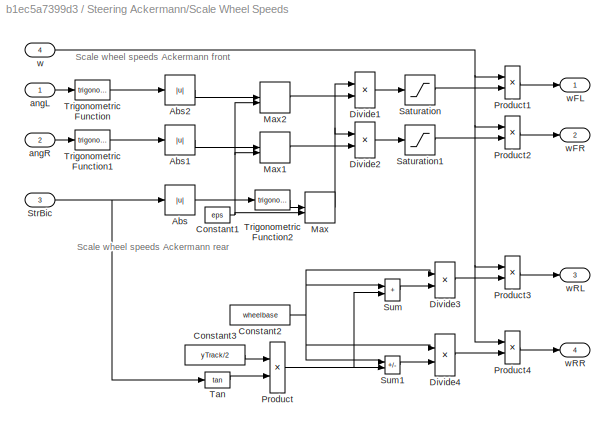
BLOCK [SubSystem] Steering Ackermann/Scale Wheel Speeds
BLOCK [Abs] Steering Ackermann/Scale Wheel Speeds/Abs
  SaturateOnIntegerOverflow = off
  ZeroCross = off
BLOCK [Abs] Steering Ackermann/Scale Wheel Speeds/Abs1
  SaturateOnIntegerOverflow = off
  ZeroCross = off
BLOCK [Abs] Steering Ackermann/Scale Wheel Speeds/Abs2
  SaturateOnIntegerOverflow = off
  ZeroCross = off
BLOCK [Constant] Steering Ackermann/Scale Wheel Speeds/Constant1
  Value = eps
BLOCK [Constant] Steering Ackermann/Scale Wheel Speeds/Constant2
  Value = wheelbase
BLOCK [Constant] Steering Ackermann/Scale Wheel Speeds/Constant3
  Value = yTrack/2
BLOCK [Product] Steering Ackermann/Scale Wheel Speeds/Divide1
  Inputs = */
BLOCK [Product] Steering Ackermann/Scale Wheel Speeds/Divide2
  Inputs = */
BLOCK [Product] Steering Ackermann/Scale Wheel Speeds/Divide3
  Inputs = */
BLOCK [Product] Steering Ackermann/Scale Wheel Speeds/Divide4
  Inputs = */
BLOCK [MinMax] Steering Ackermann/Scale Wheel Speeds/Max
  Function = max
  Inputs = 2
  ZeroCross = off
BLOCK [MinMax] Steering Ackermann/Scale Wheel Speeds/Max1
  Function = max
  Inputs = 2
  ZeroCross = off
BLOCK [MinMax] Steering Ackermann/Scale Wheel Speeds/Max2
  Function = max
  Inputs = 2
  ZeroCross = off
BLOCK [Product] Steering Ackermann/Scale Wheel Speeds/Product
BLOCK [Product] Steering Ackermann/Scale Wheel Speeds/Product1
BLOCK [Product] Steering Ackermann/Scale Wheel Speeds/Product2
BLOCK [Product] Steering Ackermann/Scale Wheel Speeds/Product3
BLOCK [Product] Steering Ackermann/Scale Wheel Speeds/Product4
BLOCK [Saturate] Steering Ackermann/Scale Wheel Speeds/Saturation
  LowerLimit = (wheelbase-yTrack/2)/wheelbase
  UpperLimit = (wheelbase+yTrack/2)/wheelbase
  ZeroCross = off
BLOCK [Saturate] Steering Ackermann/Scale Wheel Speeds/Saturation1
  LowerLimit = (wheelbase-yTrack/2)/wheelbase
  UpperLimit = (wheelbase+yTrack/2)/wheelbase
  ZeroCross = off
BLOCK [Inport] Steering Ackermann/Scale Wheel Speeds/StrBic
  Port = 3
BLOCK [Sum] Steering Ackermann/Scale Wheel Speeds/Sum
  IconShape = rectangular
BLOCK [Sum] Steering Ackermann/Scale Wheel Speeds/Sum1
  IconShape = rectangular
  Inputs = +-
BLOCK [Trigonometry] Steering Ackermann/Scale Wheel Speeds/Tan
  Operator = tan
BLOCK [Trigonometry] Steering Ackermann/Scale Wheel Speeds/Trigonometric Function
BLOCK [Trigonometry] Steering Ackermann/Scale Wheel Speeds/Trigonometric Function1
BLOCK [Trigonometry] Steering Ackermann/Scale Wheel Speeds/Trigonometric Function2
BLOCK [Inport] Steering Ackermann/Scale Wheel Speeds/angL
BLOCK [Inport] Steering Ackermann/Scale Wheel Speeds/angR
  Port = 2
BLOCK [Inport] Steering Ackermann/Scale Wheel Speeds/w
  Port = 4
BLOCK [Outport] Steering Ackermann/Scale Wheel Speeds/wFL
BLOCK [Outport] Steering Ackermann/Scale Wheel Speeds/wFR
  Port = 2
BLOCK [Outport] Steering Ackermann/Scale Wheel Speeds/wRL
  Port = 3
BLOCK [Outport] Steering Ackermann/Scale Wheel Speeds/wRR
  Port = 4
BLOCK [Reference] Steering Ackermann/Simulink-PS Converter  REF=nesl_utility/Simulink-PS
Converter
  NameLocation = top
  SourceBlock = nesl_utility/Simulink-PS\nConverter
  SourceType = Simulink-PS\nConverter
BLOCK [Reference] Steering Ackermann/Simulink-PS Converter1  REF=nesl_utility/Simulink-PS
Converter
  NameLocation = top
  SourceBlock = nesl_utility/Simulink-PS\nConverter
  SourceType = Simulink-PS\nConverter
BLOCK [Inport] Steering Ackermann/q
  Port = 2
BLOCK [Inport] Steering Ackermann/w
BLOCK [Outport] Steering Ackermann/wFL
  Port = 2
BLOCK [Outport] Steering Ackermann/wFR
  Port = 3
BLOCK [Outport] Steering Ackermann/wRL
BLOCK [Outport] Steering Ackermann/wRR
  Port = 4
BLOCK [SubSystem] Steering Articulated
  PortSchema = {"entries":[{"content":{"sides":[{"content":{},"type":"ConnectorPlacement.EquallySpacedRectSide","uuid":"65a6d75a-79bf-476b-9435-04bcf6c2ef18"},{"content":{"side":"RIGHT"},"type":"ConnectorPlacement.EquallySpacedRectSide","uuid":"4d91bb65-021e-4e19-8917-9509e9fd2683"},{"content":{"connectorIds":["In1","In2","Out1","Out2","Out3","Out4","Out5"],"side":"TOP"},"type":"ConnectorPlacement.EquallySpacedR...<+240ch>
BLOCK [Constant] Steering Articulated/Constant
  Value = steerRatio
BLOCK [Product] Steering Articulated/Divide
  Inputs = */
BLOCK [Outport] Steering Articulated/Out Bus Element
  Port = 5
BLOCK [SubSystem] Steering Articulated/Scale Wheel Speeds
BLOCK [Constant] Steering Articulated/Scale Wheel Speeds/Constant2
  Value = wheelbase
BLOCK [Constant] Steering Articulated/Scale Wheel Speeds/Constant3
  Value = yTrack/2
BLOCK [Product] Steering Articulated/Scale Wheel Speeds/Divide3
  Inputs = */
BLOCK [Product] Steering Articulated/Scale Wheel Speeds/Divide4
  Inputs = */
BLOCK [Product] Steering Articulated/Scale Wheel Speeds/Product
BLOCK [Product] Steering Articulated/Scale Wheel Speeds/Product3
BLOCK [Product] Steering Articulated/Scale Wheel Speeds/Product4
BLOCK [Inport] Steering Articulated/Scale Wheel Speeds/StrBic
BLOCK [Sum] Steering Articulated/Scale Wheel Speeds/Sum
  IconShape = rectangular
BLOCK [Sum] Steering Articulated/Scale Wheel Speeds/Sum1
  IconShape = rectangular
  Inputs = +-
BLOCK [Trigonometry] Steering Articulated/Scale Wheel Speeds/Tan
  Operator = tan
BLOCK [Inport] Steering Articulated/Scale Wheel Speeds/w
  Port = 2
BLOCK [Outport] Steering Articulated/Scale Wheel Speeds/wFL
BLOCK [Outport] Steering Articulated/Scale Wheel Speeds/wFR
  Port = 2
BLOCK [Outport] Steering Articulated/Scale Wheel Speeds/wRL
  Port = 3
BLOCK [Outport] Steering Articulated/Scale Wheel Speeds/wRR
  Port = 4
BLOCK [Inport] Steering Articulated/q
  Port = 2
BLOCK [Inport] Steering Articulated/w
BLOCK [Outport] Steering Articulated/wFL
  Port = 2
BLOCK [Outport] Steering Articulated/wFR
  Port = 3
BLOCK [Outport] Steering Articulated/wRL
BLOCK [Outport] Steering Articulated/wRR
  Port = 4
ANNOTATION (root): Chassis Components
ANNOTATION (root): Mask values matched to CAD Shell
ANNOTATION Steering Ackermann/Scale Wheel Speeds: Scale wheel speeds Ackermann front
ANNOTATION Steering Ackermann/Scale Wheel Speeds: Scale wheel speeds Ackermann rear
ANNOTATION Steering Articulated/Scale Wheel Speeds: Scale wheel speeds rear
LINE Body Sensor/PS-Simulink Converter11:1 -> Body Sensor/Roll Pitch:1
LINE Body Sensor/PS-Simulink Converter1:1 -> Body Sensor/Bus Element Out:1
LINE Body Sensor/PS-Simulink Converter2:1 -> Body Sensor/Bus Element Out1:1
LINE Body Sensor/PS-Simulink Converter3:1 -> Body Sensor/Bus Element Out2:1
LINE Body Sensor/PS-Simulink Converter4:1 -> Body Sensor/Bus Element Out3:1
LINE Body Sensor/PS-Simulink Converter5:1 -> Body Sensor/Bus Element Out4:1
LINE Body Sensor/PS-Simulink Converter6:1 -> Body Sensor/Bus Element Out5:1
LINE Body Sensor/PS-Simulink Converter7:1 -> Body Sensor/Bus Element Out6:1
LINE Body Sensor/PS-Simulink Converter8:1 -> Body Sensor/Bus Element Out7:1
LINE Body Sensor/PS-Simulink Converter9:1 -> Body Sensor/Bus Element Out8:1
LINE Body Sensor/Roll Pitch/Calculate aPitch/Asin:1 -> Body Sensor/Roll Pitch/Calculate aPitch/Angle:1
LINE Body Sensor/Roll Pitch/Calculate aPitch/Cos:1 -> Body Sensor/Roll Pitch/Calculate aPitch/Divide:2
LINE Body Sensor/Roll Pitch/Calculate aPitch/Divide1:1 -> Body Sensor/Roll Pitch/Calculate aPitch/Asin:1
LINE Body Sensor/Roll Pitch/Calculate aPitch/Divide:1 -> Body Sensor/Roll Pitch/Calculate aPitch/Divide1:1
LINE Body Sensor/Roll Pitch/Calculate aPitch/Roll Angle:1 -> Body Sensor/Roll Pitch/Calculate aPitch/Cos:1
LINE Body Sensor/Roll Pitch/Calculate aPitch/Selector:1 -> Body Sensor/Roll Pitch/Calculate aPitch/Divide:1
LINE Body Sensor/Roll Pitch/Calculate aPitch/magnitude:1 -> Body Sensor/Roll Pitch/Calculate aPitch/Divide1:2
NET Body Sensor/Roll Pitch/Calculate aPitch/uvec:1 -> Body Sensor/Roll Pitch/Calculate aPitch/Selector:1, Body Sensor/Roll Pitch/Calculate aPitch/magnitude:1
LINE Body Sensor/Roll Pitch/Calculate aPitch:1 -> Body Sensor/Roll Pitch/Flip sign for -x axis :1
LINE Body Sensor/Roll Pitch/Calculate aRoll/Demux:1 -> Body Sensor/Roll Pitch/Calculate aRoll/Mux:1
LINE Body Sensor/Roll Pitch/Calculate aRoll/Demux:2 -> Body Sensor/Roll Pitch/Calculate aRoll/Mux:2
LINE Body Sensor/Roll Pitch/Calculate aRoll/Demux:3 -> Body Sensor/Roll Pitch/Calculate aRoll/Trigonometric Function1:1
LINE Body Sensor/Roll Pitch/Calculate aRoll/Mux:1 -> Body Sensor/Roll Pitch/Calculate aRoll/magnitude:1
LINE Body Sensor/Roll Pitch/Calculate aRoll/Trigonometric Function1:1 -> Body Sensor/Roll Pitch/Calculate aRoll/Angle:1
LINE Body Sensor/Roll Pitch/Calculate aRoll/magnitude:1 -> Body Sensor/Roll Pitch/Calculate aRoll/Trigonometric Function1:2
LINE Body Sensor/Roll Pitch/Calculate aRoll/uvec:1 -> Body Sensor/Roll Pitch/Calculate aRoll/Demux:1
NET Body Sensor/Roll Pitch/Calculate aRoll:1 -> Body Sensor/Roll Pitch/Calculate aPitch:1, Body Sensor/Roll Pitch/Transfer Fcn:1, Body Sensor/Roll Pitch/aRoll:1
NET Body Sensor/Roll Pitch/Flip sign for -x axis :1 -> Body Sensor/Roll Pitch/Transfer Fcn1:1, Body Sensor/Roll Pitch/aPitch:1
NET Body Sensor/Roll Pitch/R:1 -> Body Sensor/Roll Pitch/Select x axis:1, Body Sensor/Roll Pitch/Select y axis:1
LINE Body Sensor/Roll Pitch/Select x axis:1 -> Body Sensor/Roll Pitch/Calculate aPitch:2
LINE Body Sensor/Roll Pitch/Select y axis:1 -> Body Sensor/Roll Pitch/Calculate aRoll:1
LINE Body Sensor/Roll Pitch/Transfer Fcn1:1 -> Body Sensor/Roll Pitch/nPitch:1
LINE Body Sensor/Roll Pitch/Transfer Fcn:1 -> Body Sensor/Roll Pitch/nRoll:1
LINE Body Sensor/Roll Pitch:1 -> Body Sensor/Signal Specification:1
LINE Body Sensor/Roll Pitch:2 -> Body Sensor/Signal Specification1:1
LINE Body Sensor/Roll Pitch:3 -> Body Sensor/Signal Specification3:1
LINE Body Sensor/Roll Pitch:4 -> Body Sensor/Signal Specification4:1
LINE Body Sensor/Signal Specification1:1 -> Body Sensor/Bus Element Out13:1
LINE Body Sensor/Signal Specification3:1 -> Body Sensor/Bus Element Out9:1
LINE Body Sensor/Signal Specification4:1 -> Body Sensor/Bus Element Out10:1
LINE Body Sensor/Signal Specification:1 -> Body Sensor/Bus Element Out12:1
NET Steering Ackermann/Ackerman left:1 -> Steering Ackermann/Scale Wheel Speeds:1, Steering Ackermann/Simulink-PS Converter1:1
NET Steering Ackermann/Ackerman right:1 -> Steering Ackermann/Scale Wheel Speeds:2, Steering Ackermann/Simulink-PS Converter:1
LINE Steering Ackermann/Constant:1 -> Steering Ackermann/Divide:2
NET Steering Ackermann/Divide:1 -> Steering Ackermann/Ackerman left:1, Steering Ackermann/Ackerman right:1, Steering Ackermann/Out Bus Element:1, Steering Ackermann/Scale Wheel Speeds:3
LINE Steering Ackermann/Scale Wheel Speeds/Abs1:1 -> Steering Ackermann/Scale Wheel Speeds/Max1:1
LINE Steering Ackermann/Scale Wheel Speeds/Abs2:1 -> Steering Ackermann/Scale Wheel Speeds/Max2:1
LINE Steering Ackermann/Scale Wheel Speeds/Abs:1 -> Steering Ackermann/Scale Wheel Speeds/Trigonometric Function2:1
NET Steering Ackermann/Scale Wheel Speeds/Constant1:1 -> Steering Ackermann/Scale Wheel Speeds/Max1:2, Steering Ackermann/Scale Wheel Speeds/Max2:2, Steering Ackermann/Scale Wheel Speeds/Max:2
NET Steering Ackermann/Scale Wheel Speeds/Constant2:1 -> Steering Ackermann/Scale Wheel Speeds/Divide3:1, Steering Ackermann/Scale Wheel Speeds/Divide4:1, Steering Ackermann/Scale Wheel Speeds/Sum1:1, Steering Ackermann/Scale Wheel Speeds/Sum:1
LINE Steering Ackermann/Scale Wheel Speeds/Constant3:1 -> Steering Ackermann/Scale Wheel Speeds/Product:1
LINE Steering Ackermann/Scale Wheel Speeds/Divide1:1 -> Steering Ackermann/Scale Wheel Speeds/Saturation:1
LINE Steering Ackermann/Scale Wheel Speeds/Divide2:1 -> Steering Ackermann/Scale Wheel Speeds/Saturation1:1
LINE Steering Ackermann/Scale Wheel Speeds/Divide3:1 -> Steering Ackermann/Scale Wheel Speeds/Product3:2
LINE Steering Ackermann/Scale Wheel Speeds/Divide4:1 -> Steering Ackermann/Scale Wheel Speeds/Product4:2
LINE Steering Ackermann/Scale Wheel Speeds/Max1:1 -> Steering Ackermann/Scale Wheel Speeds/Divide2:2
LINE Steering Ackermann/Scale Wheel Speeds/Max2:1 -> Steering Ackermann/Scale Wheel Speeds/Divide1:2
NET Steering Ackermann/Scale Wheel Speeds/Max:1 -> Steering Ackermann/Scale Wheel Speeds/Divide1:1, Steering Ackermann/Scale Wheel Speeds/Divide2:1
LINE Steering Ackermann/Scale Wheel Speeds/Product1:1 -> Steering Ackermann/Scale Wheel Speeds/wFL:1
LINE Steering Ackermann/Scale Wheel Speeds/Product2:1 -> Steering Ackermann/Scale Wheel Speeds/wFR:1
LINE Steering Ackermann/Scale Wheel Speeds/Product3:1 -> Steering Ackermann/Scale Wheel Speeds/wRL:1
LINE Steering Ackermann/Scale Wheel Speeds/Product4:1 -> Steering Ackermann/Scale Wheel Speeds/wRR:1
NET Steering Ackermann/Scale Wheel Speeds/Product:1 -> Steering Ackermann/Scale Wheel Speeds/Sum1:2, Steering Ackermann/Scale Wheel Speeds/Sum:2
LINE Steering Ackermann/Scale Wheel Speeds/Saturation1:1 -> Steering Ackermann/Scale Wheel Speeds/Product2:2
LINE Steering Ackermann/Scale Wheel Speeds/Saturation:1 -> Steering Ackermann/Scale Wheel Speeds/Product1:2
NET Steering Ackermann/Scale Wheel Speeds/StrBic:1 -> Steering Ackermann/Scale Wheel Speeds/Abs:1, Steering Ackermann/Scale Wheel Speeds/Tan:1
LINE Steering Ackermann/Scale Wheel Speeds/Sum1:1 -> Steering Ackermann/Scale Wheel Speeds/Divide4:2
LINE Steering Ackermann/Scale Wheel Speeds/Sum:1 -> Steering Ackermann/Scale Wheel Speeds/Divide3:2
LINE Steering Ackermann/Scale Wheel Speeds/Tan:1 -> Steering Ackermann/Scale Wheel Speeds/Product:2
LINE Steering Ackermann/Scale Wheel Speeds/Trigonometric Function1:1 -> Steering Ackermann/Scale Wheel Speeds/Abs1:1
LINE Steering Ackermann/Scale Wheel Speeds/Trigonometric Function2:1 -> Steering Ackermann/Scale Wheel Speeds/Max:1
LINE Steering Ackermann/Scale Wheel Speeds/Trigonometric Function:1 -> Steering Ackermann/Scale Wheel Speeds/Abs2:1
LINE Steering Ackermann/Scale Wheel Speeds/angL:1 -> Steering Ackermann/Scale Wheel Speeds/Trigonometric Function:1
LINE Steering Ackermann/Scale Wheel Speeds/angR:1 -> Steering Ackermann/Scale Wheel Speeds/Trigonometric Function1:1
NET Steering Ackermann/Scale Wheel Speeds/w:1 -> Steering Ackermann/Scale Wheel Speeds/Product1:1, Steering Ackermann/Scale Wheel Speeds/Product2:1, Steering Ackermann/Scale Wheel Speeds/Product3:1, Steering Ackermann/Scale Wheel Speeds/Product4:1
LINE Steering Ackermann/Scale Wheel Speeds:1 -> Steering Ackermann/wFL:1
LINE Steering Ackermann/Scale Wheel Speeds:2 -> Steering Ackermann/wFR:1
LINE Steering Ackermann/Scale Wheel Speeds:3 -> Steering Ackermann/wRL:1
LINE Steering Ackermann/Scale Wheel Speeds:4 -> Steering Ackermann/wRR:1
LINE Steering Ackermann/q:1 -> Steering Ackermann/Divide:1
LINE Steering Ackermann/w:1 -> Steering Ackermann/Scale Wheel Speeds:4
LINE Steering Articulated/Constant:1 -> Steering Articulated/Divide:2
NET Steering Articulated/Divide:1 -> Steering Articulated/Out Bus Element:1, Steering Articulated/Scale Wheel Speeds:1
NET Steering Articulated/Scale Wheel Speeds/Constant2:1 -> Steering Articulated/Scale Wheel Speeds/Divide3:1, Steering Articulated/Scale Wheel Speeds/Divide4:1, Steering Articulated/Scale Wheel Speeds/Sum1:1, Steering Articulated/Scale Wheel Speeds/Sum:1
LINE Steering Articulated/Scale Wheel Speeds/Constant3:1 -> Steering Articulated/Scale Wheel Speeds/Product:1
LINE Steering Articulated/Scale Wheel Speeds/Divide3:1 -> Steering Articulated/Scale Wheel Speeds/Product3:2
LINE Steering Articulated/Scale Wheel Speeds/Divide4:1 -> Steering Articulated/Scale Wheel Speeds/Product4:2
NET Steering Articulated/Scale Wheel Speeds/Product3:1 -> Steering Articulated/Scale Wheel Speeds/wFL:1, Steering Articulated/Scale Wheel Speeds/wRL:1
NET Steering Articulated/Scale Wheel Speeds/Product4:1 -> Steering Articulated/Scale Wheel Speeds/wFR:1, Steering Articulated/Scale Wheel Speeds/wRR:1
NET Steering Articulated/Scale Wheel Speeds/Product:1 -> Steering Articulated/Scale Wheel Speeds/Sum1:2, Steering Articulated/Scale Wheel Speeds/Sum:2
LINE Steering Articulated/Scale Wheel Speeds/StrBic:1 -> Steering Articulated/Scale Wheel Speeds/Tan:1
LINE Steering Articulated/Scale Wheel Speeds/Sum1:1 -> Steering Articulated/Scale Wheel Speeds/Divide4:2
LINE Steering Articulated/Scale Wheel Speeds/Sum:1 -> Steering Articulated/Scale Wheel Speeds/Divide3:2
LINE Steering Articulated/Scale Wheel Speeds/Tan:1 -> Steering Articulated/Scale Wheel Speeds/Product:2
NET Steering Articulated/Scale Wheel Speeds/w:1 -> Steering Articulated/Scale Wheel Speeds/Product3:1, Steering Articulated/Scale Wheel Speeds/Product4:1
LINE Steering Articulated/Scale Wheel Speeds:1 -> Steering Articulated/wFL:1
LINE Steering Articulated/Scale Wheel Speeds:2 -> Steering Articulated/wFR:1
LINE Steering Articulated/Scale Wheel Speeds:3 -> Steering Articulated/wRL:1
LINE Steering Articulated/Scale Wheel Speeds:4 -> Steering Articulated/wRR:1
LINE Steering Articulated/q:1 -> Steering Articulated/Divide:1
LINE Steering Articulated/w:1 -> Steering Articulated/Scale Wheel Speeds:2
PLINE Body Sensor/B:RConn1 -- Body Sensor/Transform Sensor Offset:LConn1
PLINE Body Sensor/PS-Simulink Converter11:LConn1 -- Body Sensor/Transform Sensor Body:RConn2
PLINE Body Sensor/PS-Simulink Converter1:LConn1 -- Body Sensor/Transform Sensor Body:RConn3
PLINE Body Sensor/PS-Simulink Converter2:LConn1 -- Body Sensor/Transform Sensor Body:RConn4
PLINE Body Sensor/PS-Simulink Converter3:LConn1 -- Body Sensor/Transform Sensor Body:RConn5
PLINE Body Sensor/PS-Simulink Converter4:LConn1 -- Body Sensor/Transform Sensor Body:RConn6
PLINE Body Sensor/PS-Simulink Converter5:LConn1 -- Body Sensor/Transform Sensor Body:RConn7
PLINE Body Sensor/PS-Simulink Converter6:LConn1 -- Body Sensor/Transform Sensor Body:RConn8
PLINE Body Sensor/PS-Simulink Converter7:LConn1 -- Body Sensor/Transform Sensor Body:RConn9
PLINE Body Sensor/PS-Simulink Converter8:LConn1 -- Body Sensor/Transform Sensor Body:RConn10
PLINE Body Sensor/PS-Simulink Converter9:LConn1 -- Body Sensor/Transform Sensor Body:RConn11
PLINE Body Sensor/Transform Sensor Body:LConn1 -- Body Sensor/World Frame:RConn1
PLINE Body Sensor/Transform Sensor Body:RConn1 -- Body Sensor/Transform Sensor Offset:RConn1
PLINE CAD Shell F/File Solid:RConn1 -- CAD Shell F/Rigid Transform:RConn1
PLINE CAD Shell F/R:RConn1 -- CAD Shell F/Rigid Transform:LConn1
PLINE CAD Shell R/File Solid:RConn1 -- CAD Shell R/Rigid Transform:RConn1
PLINE CAD Shell R/R:RConn1 -- CAD Shell R/Rigid Transform:LConn1
PLINE CAD Shell/File Solid:RConn1 -- CAD Shell/Rigid Transform:RConn1
PLINE CAD Shell/R:RConn1 -- CAD Shell/Rigid Transform:LConn1
PLINE Camera Frames/B:RConn1 -- Camera Frames/Transform Ctr Rear:LConn1
PNET net1: Camera Frames/CamF CtrRear AimFront:RConn1 -- Camera Frames/Transform Ctr :LConn1 -- Camera Frames/Transform Ctr Rear:RConn1 -- Camera Frames/Transform CtrRear AimLF:LConn1 -- Camera Frames/Transform FR Aim Front:LConn1 -- Camera Frames/Transform Front AimLR:LConn1 -- Camera Frames/Transform Left Rear AimLF:LConn1 -- Camera Frames/Transform Top:LConn1
PLINE Camera Frames/CamF CtrRear AimLF:RConn1 -- Camera Frames/Transform CtrRear AimLF:RConn1
PLINE Camera Frames/CamF FR Aim Front:RConn1 -- Camera Frames/Transform FR Aim Front:RConn1
PLINE Camera Frames/CamF FR AimCtr Big Front:RConn1 -- Camera Frames/Transform FR Aim Ctr Big Front:RConn1
PLINE Camera Frames/CamF FR AimCtr Big:RConn1 -- Camera Frames/Transform FR Aim Ctr Big:RConn1
PLINE Camera Frames/CamF FR AimCtr:RConn1 -- Camera Frames/Transform RF Aim Ctr:RConn1
PLINE Camera Frames/CamF Front AimLR:RConn1 -- Camera Frames/Transform Front AimLR:RConn1
PLINE Camera Frames/CamF Left AimRight:RConn1 -- Camera Frames/Transform Left AimRight:RConn1
PLINE Camera Frames/CamF Left Rear AimLF:RConn1 -- Camera Frames/Transform Left Rear AimLF:RConn1
PLINE Camera Frames/CamF Right AimLeftTL:RConn1 -- Camera Frames/Transform Right Aim LeftTL:RConn1
PLINE Camera Frames/CamF Right AimLeftTR:RConn1 -- Camera Frames/Transform Right Aim LeftTR:RConn1
PLINE Camera Frames/CamF Top:RConn1 -- Camera Frames/Transform Top:RConn1
PNET net2: Camera Frames/Transform Ctr :RConn1 -- Camera Frames/Transform FR Aim Ctr Big Front:LConn1 -- Camera Frames/Transform FR Aim Ctr Big:LConn1 -- Camera Frames/Transform Left AimRight:LConn1 -- Camera Frames/Transform RF Aim Ctr:LConn1 -- Camera Frames/Transform Right Aim LeftTL:LConn1 -- Camera Frames/Transform Right Aim LeftTR:LConn1
PNET net3: Chassis 2 Track Trac/Axle:RConn1 -- Chassis 2 Track Trac/Transform Chassis Ref to Axle:RConn1 -- Chassis 2 Track Trac/Transform Sprocket to Axle:RConn1 -- Chassis 2 Track Trac/Transform Track Left:LConn1 -- Chassis 2 Track Trac/Transform Track Right:LConn1
PNET net4: Chassis 2 Track Trac/Camera Frames:LConn1 -- Chassis 2 Track Trac/Transform Alignment:LConn1 -- Chassis 2 Track Trac/W:RConn1
PNET net5: Chassis 2 Track Trac/Chassis/Chassis/F:RConn1 -- Chassis 2 Track Trac/Chassis/Chassis/ReferenceFrame:RConn1 -- Chassis 2 Track Trac/Chassis/Chassis/Solid1:RConn1
PLINE Chassis 2 Track Trac/Chassis/Chassis/Solid1:LConn1 -- Chassis 2 Track Trac/Chassis/Chassis/Sw:RConn1
PLINE Chassis 2 Track Trac/Chassis/Chassis:LConn1 -- Chassis 2 Track Trac/Chassis/Transform Hull:RConn1
PLINE Chassis 2 Track Trac/Chassis/Chassis:LConn2 -- Chassis 2 Track Trac/Chassis/Sw:RConn1
PNET net6: Chassis 2 Track Trac/Chassis/Cylinder Attach/F:RConn1 -- Chassis 2 Track Trac/Chassis/Cylinder Attach/ReferenceFrame:RConn1 -- Chassis 2 Track Trac/Chassis/Cylinder Attach/Solid:RConn1
PLINE Chassis 2 Track Trac/Chassis/Cylinder Attach:LConn1 -- Chassis 2 Track Trac/Chassis/Transform Cylnder Attach:RConn1
PNET net7: Chassis 2 Track Trac/Chassis/Lights/F:RConn1 -- Chassis 2 Track Trac/Chassis/Lights/ReferenceFrame:RConn1 -- Chassis 2 Track Trac/Chassis/Lights/Solid:RConn1
PLINE Chassis 2 Track Trac/Chassis/Lights:LConn1 -- Chassis 2 Track Trac/Chassis/Transform Lights:RConn1
PNET net8: Chassis 2 Track Trac/Chassis/Membrane L/F:RConn1 -- Chassis 2 Track Trac/Chassis/Membrane L/ReferenceFrame:RConn1 -- Chassis 2 Track Trac/Chassis/Membrane L/Solid:RConn1
PLINE Chassis 2 Track Trac/Chassis/Membrane L:LConn1 -- Chassis 2 Track Trac/Chassis/Transform Membrane L:RConn1
PNET net9: Chassis 2 Track Trac/Chassis/Membrane R/F:RConn1 -- Chassis 2 Track Trac/Chassis/Membrane R/ReferenceFrame:RConn1 -- Chassis 2 Track Trac/Chassis/Membrane R/Solid:RConn1
PLINE Chassis 2 Track Trac/Chassis/Membrane R:LConn1 -- Chassis 2 Track Trac/Chassis/Transform Membrane R:RConn1
PNET net10: Chassis 2 Track Trac/Chassis/Name/F:RConn1 -- Chassis 2 Track Trac/Chassis/Name/ReferenceFrame:RConn1 -- Chassis 2 Track Trac/Chassis/Name/Solid:RConn1
PLINE Chassis 2 Track Trac/Chassis/Name:LConn1 -- Chassis 2 Track Trac/Chassis/Transform Name:RConn1
PLINE Chassis 2 Track Trac/Chassis/Paint/Down:RConn1 -- Chassis 2 Track Trac/Chassis/Paint/Rigid Transform3:RConn1
PNET net11: Chassis 2 Track Trac/Chassis/Paint/F:RConn1 -- Chassis 2 Track Trac/Chassis/Paint/Rigid Transform1:LConn1 -- Chassis 2 Track Trac/Chassis/Paint/Rigid Transform2:LConn1 -- Chassis 2 Track Trac/Chassis/Paint/Rigid Transform3:LConn1 -- Chassis 2 Track Trac/Chassis/Paint/Rigid Transform4:LConn1 -- Chassis 2 Track Trac/Chassis/Paint/Rigid Transform5:LConn1 -- Chassis 2 Track Trac/Chassis/Paint/Rigid Transform:LConn1
PLINE Chassis 2 Track Trac/Chassis/Paint/Front:RConn1 -- Chassis 2 Track Trac/Chassis/Paint/Rigid Transform:RConn1
PLINE Chassis 2 Track Trac/Chassis/Paint/Left:RConn1 -- Chassis 2 Track Trac/Chassis/Paint/Rigid Transform4:RConn1
PLINE Chassis 2 Track Trac/Chassis/Paint/Rear:RConn1 -- Chassis 2 Track Trac/Chassis/Paint/Rigid Transform1:RConn1
PLINE Chassis 2 Track Trac/Chassis/Paint/Right:RConn1 -- Chassis 2 Track Trac/Chassis/Paint/Rigid Transform5:RConn1
PLINE Chassis 2 Track Trac/Chassis/Paint/Rigid Transform2:RConn1 -- Chassis 2 Track Trac/Chassis/Paint/Up:RConn1
PLINE Chassis 2 Track Trac/Chassis/Paint:LConn1 -- Chassis 2 Track Trac/Chassis/Transform Paint:RConn1
PLINE Chassis 2 Track Trac/Chassis/Reference Frame:RConn1 -- Chassis 2 Track Trac/Chassis/Transform Chassis:LConn1
PNET net12: Chassis 2 Track Trac/Chassis/Transform Chassis:RConn1 -- Chassis 2 Track Trac/Chassis/Transform Cylnder Attach:LConn1 -- Chassis 2 Track Trac/Chassis/Transform Hull Plus:LConn1 -- Chassis 2 Track Trac/Chassis/Transform Membrane L:LConn1 -- Chassis 2 Track Trac/Chassis/Transform Membrane R:LConn1 -- Chassis 2 Track Trac/Chassis/Transform Name:LConn1
PNET net13: Chassis 2 Track Trac/Chassis/Transform Hull Plus:RConn1 -- Chassis 2 Track Trac/Chassis/Transform Hull:LConn1 -- Chassis 2 Track Trac/Chassis/Transform Lights:LConn1 -- Chassis 2 Track Trac/Chassis/Transform Paint:LConn1
PNET net14: Chassis 2 Track Trac/Chassis:LConn1 -- Chassis 2 Track Trac/Transform Chassis Ref to Axle:LConn1 -- Chassis 2 Track Trac/Transform Chassis Ref to CG:LConn1 -- Chassis 2 Track Trac/Transform Susp Left:LConn1 -- Chassis 2 Track Trac/Transform Susp Right:LConn1
PLINE Chassis 2 Track Trac/Cylinder Left:LConn1 -- Chassis 2 Track Trac/sL:RConn1
PLINE Chassis 2 Track Trac/Cylinder Left:RConn1 -- Chassis 2 Track Trac/Transform Susp Left:RConn1
PLINE Chassis 2 Track Trac/Cylinder Right:LConn1 -- Chassis 2 Track Trac/sR:RConn1
PLINE Chassis 2 Track Trac/Cylinder Right:RConn1 -- Chassis 2 Track Trac/Transform Susp Right:RConn1
PLINE Chassis 2 Track Trac/Inertia Chassis:RConn1 -- Chassis 2 Track Trac/Transform Chassis Ref to CG:RConn1
PLINE Chassis 2 Track Trac/Revolute Axle L:LConn1 -- Chassis 2 Track Trac/Transform Track Left:RConn1
PLINE Chassis 2 Track Trac/Revolute Axle L:RConn1 -- Chassis 2 Track Trac/aL:RConn1
PLINE Chassis 2 Track Trac/Revolute Axle R:LConn1 -- Chassis 2 Track Trac/Transform Track Right:RConn1
PLINE Chassis 2 Track Trac/Revolute Axle R:RConn1 -- Chassis 2 Track Trac/aR:RConn1
PLINE Chassis 2 Track Trac/Transform Alignment:RConn1 -- Chassis 2 Track Trac/Transform Sprocket to Axle:LConn1
PNET net15: Chassis 2 Track/Axle:RConn1 -- Chassis 2 Track/Transform Chassis Ref to Axle:RConn1 -- Chassis 2 Track/Transform Sprocket to Axle:RConn1 -- Chassis 2 Track/Transform Track Left:LConn1 -- Chassis 2 Track/Transform Track Right:LConn1
PNET net16: Chassis 2 Track/Camera Frames:LConn1 -- Chassis 2 Track/Transform Alignment:LConn1 -- Chassis 2 Track/W:RConn1
PNET net17: Chassis 2 Track/Chassis/Chassis/F:RConn1 -- Chassis 2 Track/Chassis/Chassis/ReferenceFrame:RConn1 -- Chassis 2 Track/Chassis/Chassis/Solid1:RConn1
PLINE Chassis 2 Track/Chassis/Chassis/Solid1:LConn1 -- Chassis 2 Track/Chassis/Chassis/Sw:RConn1
PLINE Chassis 2 Track/Chassis/Chassis:LConn1 -- Chassis 2 Track/Chassis/Transform Hull:RConn1
PLINE Chassis 2 Track/Chassis/Chassis:LConn2 -- Chassis 2 Track/Chassis/Sw:RConn1
PNET net18: Chassis 2 Track/Chassis/Cylinder Attach/F:RConn1 -- Chassis 2 Track/Chassis/Cylinder Attach/ReferenceFrame:RConn1 -- Chassis 2 Track/Chassis/Cylinder Attach/Solid:RConn1
PLINE Chassis 2 Track/Chassis/Cylinder Attach:LConn1 -- Chassis 2 Track/Chassis/Transform Cylnder Attach:RConn1
PNET net19: Chassis 2 Track/Chassis/Lights/F:RConn1 -- Chassis 2 Track/Chassis/Lights/ReferenceFrame:RConn1 -- Chassis 2 Track/Chassis/Lights/Solid:RConn1
PLINE Chassis 2 Track/Chassis/Lights:LConn1 -- Chassis 2 Track/Chassis/Transform Lights:RConn1
PNET net20: Chassis 2 Track/Chassis/Membrane L/F:RConn1 -- Chassis 2 Track/Chassis/Membrane L/ReferenceFrame:RConn1 -- Chassis 2 Track/Chassis/Membrane L/Solid:RConn1
PLINE Chassis 2 Track/Chassis/Membrane L:LConn1 -- Chassis 2 Track/Chassis/Transform Membrane L:RConn1
PNET net21: Chassis 2 Track/Chassis/Membrane R/F:RConn1 -- Chassis 2 Track/Chassis/Membrane R/ReferenceFrame:RConn1 -- Chassis 2 Track/Chassis/Membrane R/Solid:RConn1
PLINE Chassis 2 Track/Chassis/Membrane R:LConn1 -- Chassis 2 Track/Chassis/Transform Membrane R:RConn1
PNET net22: Chassis 2 Track/Chassis/Name/F:RConn1 -- Chassis 2 Track/Chassis/Name/ReferenceFrame:RConn1 -- Chassis 2 Track/Chassis/Name/Solid:RConn1
PLINE Chassis 2 Track/Chassis/Name:LConn1 -- Chassis 2 Track/Chassis/Transform Name:RConn1
PLINE Chassis 2 Track/Chassis/Paint/Down:RConn1 -- Chassis 2 Track/Chassis/Paint/Rigid Transform3:RConn1
PNET net23: Chassis 2 Track/Chassis/Paint/F:RConn1 -- Chassis 2 Track/Chassis/Paint/Rigid Transform1:LConn1 -- Chassis 2 Track/Chassis/Paint/Rigid Transform2:LConn1 -- Chassis 2 Track/Chassis/Paint/Rigid Transform3:LConn1 -- Chassis 2 Track/Chassis/Paint/Rigid Transform4:LConn1 -- Chassis 2 Track/Chassis/Paint/Rigid Transform5:LConn1 -- Chassis 2 Track/Chassis/Paint/Rigid Transform:LConn1
PLINE Chassis 2 Track/Chassis/Paint/Front:RConn1 -- Chassis 2 Track/Chassis/Paint/Rigid Transform:RConn1
PLINE Chassis 2 Track/Chassis/Paint/Left:RConn1 -- Chassis 2 Track/Chassis/Paint/Rigid Transform4:RConn1
PLINE Chassis 2 Track/Chassis/Paint/Rear:RConn1 -- Chassis 2 Track/Chassis/Paint/Rigid Transform1:RConn1
PLINE Chassis 2 Track/Chassis/Paint/Right:RConn1 -- Chassis 2 Track/Chassis/Paint/Rigid Transform5:RConn1
PLINE Chassis 2 Track/Chassis/Paint/Rigid Transform2:RConn1 -- Chassis 2 Track/Chassis/Paint/Up:RConn1
PLINE Chassis 2 Track/Chassis/Paint:LConn1 -- Chassis 2 Track/Chassis/Transform Paint:RConn1
PLINE Chassis 2 Track/Chassis/Reference Frame:RConn1 -- Chassis 2 Track/Chassis/Transform Chassis:LConn1
PNET net24: Chassis 2 Track/Chassis/Transform Chassis:RConn1 -- Chassis 2 Track/Chassis/Transform Cylnder Attach:LConn1 -- Chassis 2 Track/Chassis/Transform Hull Plus:LConn1 -- Chassis 2 Track/Chassis/Transform Membrane L:LConn1 -- Chassis 2 Track/Chassis/Transform Membrane R:LConn1 -- Chassis 2 Track/Chassis/Transform Name:LConn1
PNET net25: Chassis 2 Track/Chassis/Transform Hull Plus:RConn1 -- Chassis 2 Track/Chassis/Transform Hull:LConn1 -- Chassis 2 Track/Chassis/Transform Lights:LConn1 -- Chassis 2 Track/Chassis/Transform Paint:LConn1
PNET net26: Chassis 2 Track/Chassis:LConn1 -- Chassis 2 Track/Transform Chassis Ref to Axle:LConn1 -- Chassis 2 Track/Transform Chassis Ref to CG:LConn1 -- Chassis 2 Track/Transform Susp Left:LConn1 -- Chassis 2 Track/Transform Susp Right:LConn1
PLINE Chassis 2 Track/Cylinder Left:LConn1 -- Chassis 2 Track/sL:RConn1
PLINE Chassis 2 Track/Cylinder Left:RConn1 -- Chassis 2 Track/Transform Susp Left:RConn1
PLINE Chassis 2 Track/Cylinder Right:LConn1 -- Chassis 2 Track/sR:RConn1
PLINE Chassis 2 Track/Cylinder Right:RConn1 -- Chassis 2 Track/Transform Susp Right:RConn1
PLINE Chassis 2 Track/Inertia Chassis:RConn1 -- Chassis 2 Track/Transform Chassis Ref to CG:RConn1
PLINE Chassis 2 Track/Revolute Axle L:LConn1 -- Chassis 2 Track/Transform Track Left:RConn1
PLINE Chassis 2 Track/Revolute Axle L:RConn1 -- Chassis 2 Track/aL:RConn1
PLINE Chassis 2 Track/Revolute Axle R:LConn1 -- Chassis 2 Track/Transform Track Right:RConn1
PLINE Chassis 2 Track/Revolute Axle R:RConn1 -- Chassis 2 Track/aR:RConn1
PLINE Chassis 2 Track/Transform Alignment:RConn1 -- Chassis 2 Track/Transform Sprocket to Axle:LConn1
PNET net27: Chassis Articulated Front/AxleF:RConn1 -- Chassis Articulated Front/Transform Chassis Ref to Axle:RConn1 -- Chassis Articulated Front/Transform Sprocket to Axle:RConn1 -- Chassis Articulated Front/Transform Track FL:LConn1 -- Chassis Articulated Front/Transform Track FR:LConn1
PLINE Chassis Articulated Front/CAD/None/R:RConn1 -- Chassis Articulated Front/CAD/None/Reference Frame:RConn1
PLINE Chassis Articulated Front/CAD:RConn1 -- Chassis Articulated Front/Transform CAD Offset:RConn1
PLINE Chassis Articulated Front/Extrusion/None/R:RConn1 -- Chassis Articulated Front/Extrusion/None/Reference Frame:RConn1
PLINE Chassis Articulated Front/Extrusion/Profile/Extruded Solid:RConn1 -- Chassis Articulated Front/Extrusion/Profile/Transform Chassis Ref to Body Vis:RConn1
PLINE Chassis Articulated Front/Extrusion/Profile/R:RConn1 -- Chassis Articulated Front/Extrusion/Profile/Transform Chassis Ref to Body Vis:LConn1
PNET net28: Chassis Articulated Front/Extrusion:RConn1 -- Chassis Articulated Front/Transform Chassis Ref to Axle:LConn1 -- Chassis Articulated Front/Transform Chassis Ref to CG:LConn1
PLINE Chassis Articulated Front/H:RConn1 -- Chassis Articulated Front/Transform Artic Hinge:RConn1
PLINE Chassis Articulated Front/Inertia Chassis:RConn1 -- Chassis Articulated Front/Transform Chassis Ref to CG:RConn1
PLINE Chassis Articulated Front/L:RConn1 -- Chassis Articulated Front/Transform Track FL:RConn1
PLINE Chassis Articulated Front/R:RConn1 -- Chassis Articulated Front/Transform Track FR:RConn1
PNET net29: Chassis Articulated Front/Transform Alignment:LConn1 -- Chassis Articulated Front/Transform Artic Hinge:LConn1 -- Chassis Articulated Front/Transform CAD Offset:LConn1 -- Chassis Articulated Front/W:RConn1
PLINE Chassis Articulated Front/Transform Alignment:RConn1 -- Chassis Articulated Front/Transform Sprocket to Axle:LConn1
PNET net30: Chassis Articulated Rear/AxleR:RConn1 -- Chassis Articulated Rear/Transform Chassis Ref to Axle:RConn1 -- Chassis Articulated Rear/Transform Sprocket to AxleR:RConn1 -- Chassis Articulated Rear/Transform Track RL:LConn1 -- Chassis Articulated Rear/Transform Track RR:LConn1
PLINE Chassis Articulated Rear/CAD/None/R:RConn1 -- Chassis Articulated Rear/CAD/None/Reference Frame:RConn1
PLINE Chassis Articulated Rear/CAD:RConn1 -- Chassis Articulated Rear/Transform CAD:RConn1
PLINE Chassis Articulated Rear/Extrusion/None/R:RConn1 -- Chassis Articulated Rear/Extrusion/None/Reference Frame:RConn1
PLINE Chassis Articulated Rear/Extrusion/Profile/Extruded Solid:RConn1 -- Chassis Articulated Rear/Extrusion/Profile/Transform Chassis Ref to Body Vis:RConn1
PLINE Chassis Articulated Rear/Extrusion/Profile/R:RConn1 -- Chassis Articulated Rear/Extrusion/Profile/Transform Chassis Ref to Body Vis:LConn1
PNET net31: Chassis Articulated Rear/Extrusion:RConn1 -- Chassis Articulated Rear/Transform Chassis Ref to Axle:LConn1 -- Chassis Articulated Rear/Transform Chassis Ref to CG:LConn1
PLINE Chassis Articulated Rear/H:RConn1 -- Chassis Articulated Rear/Transform Artic Hinge:RConn1
PLINE Chassis Articulated Rear/Inertia Chassis:RConn1 -- Chassis Articulated Rear/Transform Chassis Ref to CG:RConn1
PLINE Chassis Articulated Rear/L:RConn1 -- Chassis Articulated Rear/Transform Track RL:RConn1
PLINE Chassis Articulated Rear/R:RConn1 -- Chassis Articulated Rear/Transform Track RR:RConn1
PNET net32: Chassis Articulated Rear/Transform Alignment:LConn1 -- Chassis Articulated Rear/Transform Artic Hinge:LConn1 -- Chassis Articulated Rear/Transform CAD:LConn1 -- Chassis Articulated Rear/W:RConn1
PLINE Chassis Articulated Rear/Transform Alignment:RConn1 -- Chassis Articulated Rear/Transform Sprocket to AxleR:LConn1
PLINE Chassis Half Trac/Inertia Half Chassis:RConn1 -- Chassis Half Trac/Transform Chassis Ref to CG:RConn1
PLINE Chassis Half Trac/Transform Alignment:LConn1 -- Chassis Half Trac/W:RConn1
PLINE Chassis Half Trac/Transform Alignment:RConn1 -- Chassis Half Trac/Transform Sprocket to Axle:LConn1
PLINE Chassis Half Trac/Transform Chassis Ref to Axle:LConn1 -- Chassis Half Trac/Transform Track Left CG:LConn1
PNET net33: Chassis Half Trac/Transform Chassis Ref to Axle:RConn1 -- Chassis Half Trac/Transform Sprocket to Axle:RConn1 -- Chassis Half Trac/Transform Track Left:LConn1
PLINE Chassis Half Trac/Transform Chassis Ref to CG:LConn1 -- Chassis Half Trac/Transform Track Left CG:RConn1
PLINE Chassis Half Trac/Transform Track Left:RConn1 -- Chassis Half Trac/aL:RConn1
PNET net34: Chassis Half/Camera Frames:LConn1 -- Chassis Half/Transform Alignment:LConn1 -- Chassis Half/W:RConn1
PLINE Chassis Half/Inertia Half Chassis:RConn1 -- Chassis Half/Transform Chassis Ref to CG:RConn1
PLINE Chassis Half/Reference Frame:RConn1 -- Chassis Half/sL:RConn1
PLINE Chassis Half/Transform Alignment:RConn1 -- Chassis Half/Transform Sprocket to Axle:LConn1
PLINE Chassis Half/Transform Chassis Ref to Axle:LConn1 -- Chassis Half/Transform Track Left CG:LConn1
PNET net35: Chassis Half/Transform Chassis Ref to Axle:RConn1 -- Chassis Half/Transform Sprocket to Axle:RConn1 -- Chassis Half/Transform Track Left:LConn1
PLINE Chassis Half/Transform Chassis Ref to CG:LConn1 -- Chassis Half/Transform Track Left CG:RConn1
PLINE Chassis Half/Transform Track Left:RConn1 -- Chassis Half/aL:RConn1
PLINE Steering Ackermann/L:RConn1 -- Steering Ackermann/Simulink-PS Converter1:RConn1
PLINE Steering Ackermann/R:RConn1 -- Steering Ackermann/Simulink-PS Converter:RConn1
note: NET lines group one-source signal fan-out (src -> all destinations, sorted); 1:1 wires keep LINE; PNET lines group multi-terminal physical nets as a canonical sorted terminal list (undirected conserving connections); 2-terminal nets keep the pairwise PLINE form
